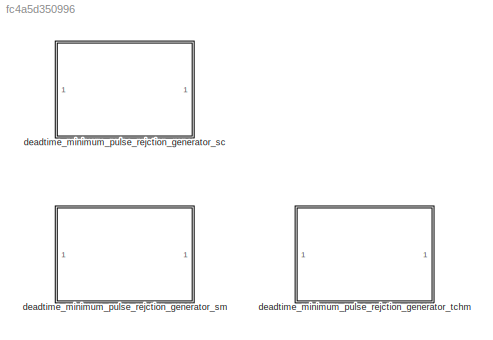
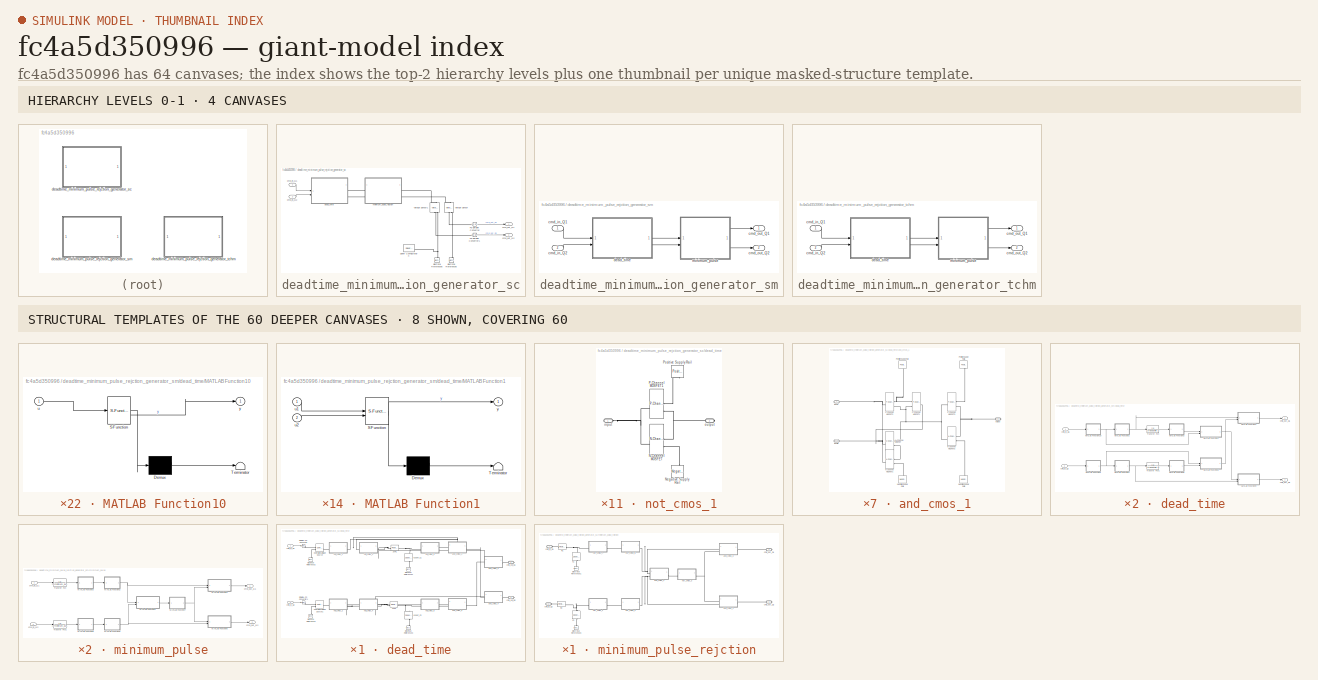
[diagram: thumbnail index - top-2 hierarchy levels (4 canvases) + 8 structural-template representatives of the remaining 60 canvases]
MODEL slx_fc4a5d350996
KIND library
CONFIG AbsTol = auto
CONFIG EnableMultiTasking = off
CONFIG FixedStep = auto
CONFIG MaxStep = auto
CONFIG MinStep = auto
CONFIG RelTol = 1e-3
CONFIG SampleTimeConstraint = Unconstrained
CONFIG SolverName = VariableStepAuto
CONFIG StartTime = 0.0
CONFIG StopTime = 10.0
BLOCK [SubSystem] deadtime_minimum_pulse_rejction_generator_sc
BLOCK [Reference] deadtime_minimum_pulse_rejction_generator_sc/Electrical Reference5  REF=fl_lib/Electrical/Electrical Elements/Electrical Reference
  SourceBlock = fl_lib/Electrical/Electrical Elements/Electrical Reference
  SourceType = Electrical Reference
BLOCK [Reference] deadtime_minimum_pulse_rejction_generator_sc/Electrical Reference6  REF=fl_lib/Electrical/Electrical Elements/Electrical Reference
  SourceBlock = fl_lib/Electrical/Electrical Elements/Electrical Reference
  SourceType = Electrical Reference
BLOCK [Reference] deadtime_minimum_pulse_rejction_generator_sc/PS-Simulink Converter  REF=nesl_utility/PS-Simulink
Converter
  SourceBlock = nesl_utility/PS-Simulink\nConverter
  SourceType = PS-Simulink\nConverter
BLOCK [Reference] deadtime_minimum_pulse_rejction_generator_sc/PS-Simulink Converter1  REF=nesl_utility/PS-Simulink
Converter
  SourceBlock = nesl_utility/PS-Simulink\nConverter
  SourceType = PS-Simulink\nConverter
BLOCK [Reference] deadtime_minimum_pulse_rejction_generator_sc/Solver Configuration  REF=nesl_utility/Solver
Configuration
  SourceBlock = nesl_utility/Solver\nConfiguration
  SourceType = Solver\nConfiguration
BLOCK [Reference] deadtime_minimum_pulse_rejction_generator_sc/Voltage Sensor  REF=fl_lib/Electrical/Electrical Sensors/Voltage Sensor
  NameLocation = right
  SourceBlock = fl_lib/Electrical/Electrical Sensors/Voltage Sensor
  SourceType = Voltage Sensor
BLOCK [Reference] deadtime_minimum_pulse_rejction_generator_sc/Voltage Sensor1  REF=fl_lib/Electrical/Electrical Sensors/Voltage Sensor
  NameLocation = right
  SourceBlock = fl_lib/Electrical/Electrical Sensors/Voltage Sensor
  SourceType = Voltage Sensor
BLOCK [Inport] deadtime_minimum_pulse_rejction_generator_sc/cmd_in_Q1
BLOCK [Inport] deadtime_minimum_pulse_rejction_generator_sc/cmd_in_Q2
  Port = 2
BLOCK [Outport] deadtime_minimum_pulse_rejction_generator_sc/cmd_out_Q1
BLOCK [Outport] deadtime_minimum_pulse_rejction_generator_sc/cmd_out_Q2
  Port = 2
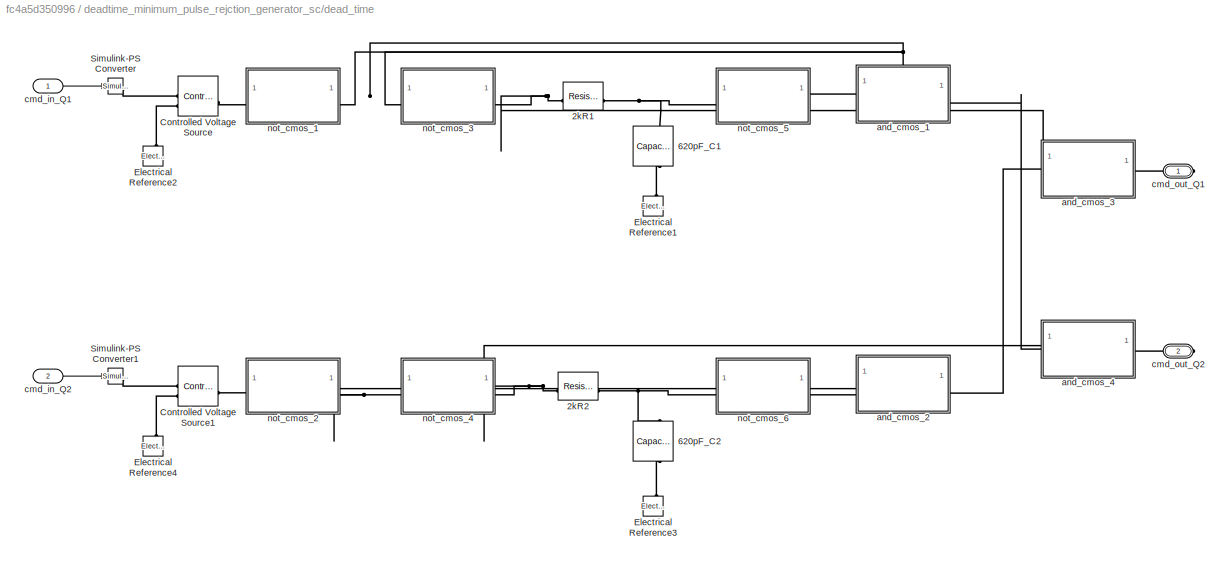
BLOCK [SubSystem] deadtime_minimum_pulse_rejction_generator_sc/dead_time
BLOCK [Reference] deadtime_minimum_pulse_rejction_generator_sc/dead_time/2kR1  REF=fl_lib/Electrical/Electrical Elements/Resistor
  SourceBlock = fl_lib/Electrical/Electrical Elements/Resistor
  SourceType = Resistor
BLOCK [Reference] deadtime_minimum_pulse_rejction_generator_sc/dead_time/2kR2  REF=fl_lib/Electrical/Electrical Elements/Resistor
  SourceBlock = fl_lib/Electrical/Electrical Elements/Resistor
  SourceType = Resistor
BLOCK [Reference] deadtime_minimum_pulse_rejction_generator_sc/dead_time/620pF_C1  REF=fl_lib/Electrical/Electrical Elements/Capacitor
  NameLocation = left
  SourceBlock = fl_lib/Electrical/Electrical Elements/Capacitor
  SourceType = Capacitor
BLOCK [Reference] deadtime_minimum_pulse_rejction_generator_sc/dead_time/620pF_C2  REF=fl_lib/Electrical/Electrical Elements/Capacitor
  NameLocation = left
  SourceBlock = fl_lib/Electrical/Electrical Elements/Capacitor
  SourceType = Capacitor
BLOCK [Reference] deadtime_minimum_pulse_rejction_generator_sc/dead_time/Controlled Voltage Source  REF=fl_lib/Electrical/Electrical Sources/Controlled Voltage
Source
  SourceBlock = fl_lib/Electrical/Electrical Sources/Controlled Voltage\nSource
  SourceType = Controlled Voltage\nSource
BLOCK [Reference] deadtime_minimum_pulse_rejction_generator_sc/dead_time/Controlled Voltage Source1  REF=fl_lib/Electrical/Electrical Sources/Controlled Voltage
Source
  SourceBlock = fl_lib/Electrical/Electrical Sources/Controlled Voltage\nSource
  SourceType = Controlled Voltage\nSource
BLOCK [Reference] deadtime_minimum_pulse_rejction_generator_sc/dead_time/Electrical Reference1  REF=fl_lib/Electrical/Electrical Elements/Electrical Reference
  NameLocation = right
  SourceBlock = fl_lib/Electrical/Electrical Elements/Electrical Reference
  SourceType = Electrical Reference
BLOCK [Reference] deadtime_minimum_pulse_rejction_generator_sc/dead_time/Electrical Reference2  REF=fl_lib/Electrical/Electrical Elements/Electrical Reference
  NameLocation = right
  SourceBlock = fl_lib/Electrical/Electrical Elements/Electrical Reference
  SourceType = Electrical Reference
BLOCK [Reference] deadtime_minimum_pulse_rejction_generator_sc/dead_time/Electrical Reference3  REF=fl_lib/Electrical/Electrical Elements/Electrical Reference
  NameLocation = right
  SourceBlock = fl_lib/Electrical/Electrical Elements/Electrical Reference
  SourceType = Electrical Reference
BLOCK [Reference] deadtime_minimum_pulse_rejction_generator_sc/dead_time/Electrical Reference4  REF=fl_lib/Electrical/Electrical Elements/Electrical Reference
  NameLocation = right
  SourceBlock = fl_lib/Electrical/Electrical Elements/Electrical Reference
  SourceType = Electrical Reference
BLOCK [Reference] deadtime_minimum_pulse_rejction_generator_sc/dead_time/Simulink-PS Converter  REF=nesl_utility/Simulink-PS
Converter
  SourceBlock = nesl_utility/Simulink-PS\nConverter
  SourceType = Simulink-PS\nConverter
BLOCK [Reference] deadtime_minimum_pulse_rejction_generator_sc/dead_time/Simulink-PS Converter1  REF=nesl_utility/Simulink-PS
Converter
  SourceBlock = nesl_utility/Simulink-PS\nConverter
  SourceType = Simulink-PS\nConverter
BLOCK [SubSystem] deadtime_minimum_pulse_rejction_generator_sc/dead_time/and_cmos_1
  PortSchema = {"entries":[{"content":{"sides":[{"content":{"connectorIds":["LConn1"]},"type":"ConnectorPlacement.EquallySpacedRectSide","uuid":"4468949f-f30a-49ce-949f-963bd607b697"},{"content":{"connectorIds":["RConn1"],"side":"RIGHT"},"type":"ConnectorPlacement.EquallySpacedRectSide","uuid":"ceda4040-901d-4fda-af9a-fc2c310617d8"},{"content":{"connectorIds":["LConn2"],"side":"TOP"},"type":"ConnectorPlacement.E...<+253ch>  <repeated x4 — deduplicated; at blocks: and_cmos_1, and_cmos_2, and_cmos_3, and_cmos_4>
BLOCK [Reference] deadtime_minimum_pulse_rejction_generator_sc/dead_time/and_cmos_1/N-Channel MOSFET  REF=ee_lib/Semiconductors &
Converters/N-Channel MOSFET
  SourceBlock = ee_lib/Semiconductors &\nConverters/N-Channel MOSFET
  SourceType = N-Channel MOSFET
BLOCK [Reference] deadtime_minimum_pulse_rejction_generator_sc/dead_time/and_cmos_1/N-Channel MOSFET1  REF=ee_lib/Semiconductors &
Converters/N-Channel MOSFET
  SourceBlock = ee_lib/Semiconductors &\nConverters/N-Channel MOSFET
  SourceType = N-Channel MOSFET
BLOCK [Reference] deadtime_minimum_pulse_rejction_generator_sc/dead_time/and_cmos_1/N-Channel MOSFET2  REF=ee_lib/Semiconductors &
Converters/N-Channel MOSFET
  SourceBlock = ee_lib/Semiconductors &\nConverters/N-Channel MOSFET
  SourceType = N-Channel MOSFET
BLOCK [Reference] deadtime_minimum_pulse_rejction_generator_sc/dead_time/and_cmos_1/Negative Supply Rail1  REF=ee_lib/Sources/Negative Supply Rail
  NameLocation = right
  SourceBlock = ee_lib/Sources/Negative Supply Rail
  SourceType = Negative Supply Rail
BLOCK [Reference] deadtime_minimum_pulse_rejction_generator_sc/dead_time/and_cmos_1/Negative Supply Rail2  REF=ee_lib/Sources/Negative Supply Rail
  NameLocation = right
  SourceBlock = ee_lib/Sources/Negative Supply Rail
  SourceType = Negative Supply Rail
BLOCK [Reference] deadtime_minimum_pulse_rejction_generator_sc/dead_time/and_cmos_1/P-Channel MOSFET1  REF=ee_lib/Semiconductors &
Converters/P-Channel MOSFET
  SourceBlock = ee_lib/Semiconductors &\nConverters/P-Channel MOSFET
  SourceType = P-Channel MOSFET
BLOCK [Reference] deadtime_minimum_pulse_rejction_generator_sc/dead_time/and_cmos_1/P-Channel MOSFET2  REF=ee_lib/Semiconductors &
Converters/P-Channel MOSFET
  SourceBlock = ee_lib/Semiconductors &\nConverters/P-Channel MOSFET
  SourceType = P-Channel MOSFET
BLOCK [Reference] deadtime_minimum_pulse_rejction_generator_sc/dead_time/and_cmos_1/P-Channel MOSFET3  REF=ee_lib/Semiconductors &
Converters/P-Channel MOSFET
  SourceBlock = ee_lib/Semiconductors &\nConverters/P-Channel MOSFET
  SourceType = P-Channel MOSFET
BLOCK [Reference] deadtime_minimum_pulse_rejction_generator_sc/dead_time/and_cmos_1/Positive Supply Rail  REF=ee_lib/Sources/Positive Supply Rail
  NameLocation = right
  SourceBlock = ee_lib/Sources/Positive Supply Rail
  SourceType = Positive Supply Rail
BLOCK [Reference] deadtime_minimum_pulse_rejction_generator_sc/dead_time/and_cmos_1/Positive Supply Rail1  REF=ee_lib/Sources/Positive Supply Rail
  NameLocation = right
  SourceBlock = ee_lib/Sources/Positive Supply Rail
  SourceType = Positive Supply Rail
BLOCK [PMIOPort] deadtime_minimum_pulse_rejction_generator_sc/dead_time/and_cmos_1/inputA
  Port = 2
  Side = Left
BLOCK [PMIOPort] deadtime_minimum_pulse_rejction_generator_sc/dead_time/and_cmos_1/inputB
  Side = Left
BLOCK [PMIOPort] deadtime_minimum_pulse_rejction_generator_sc/dead_time/and_cmos_1/output
  Port = 3
  Side = Right
BLOCK [SubSystem] deadtime_minimum_pulse_rejction_generator_sc/dead_time/and_cmos_2
BLOCK [Reference] deadtime_minimum_pulse_rejction_generator_sc/dead_time/and_cmos_2/N-Channel MOSFET  REF=ee_lib/Semiconductors &
Converters/N-Channel MOSFET
  SourceBlock = ee_lib/Semiconductors &\nConverters/N-Channel MOSFET
  SourceType = N-Channel MOSFET
BLOCK [Reference] deadtime_minimum_pulse_rejction_generator_sc/dead_time/and_cmos_2/N-Channel MOSFET1  REF=ee_lib/Semiconductors &
Converters/N-Channel MOSFET
  SourceBlock = ee_lib/Semiconductors &\nConverters/N-Channel MOSFET
  SourceType = N-Channel MOSFET
BLOCK [Reference] deadtime_minimum_pulse_rejction_generator_sc/dead_time/and_cmos_2/N-Channel MOSFET2  REF=ee_lib/Semiconductors &
Converters/N-Channel MOSFET
  SourceBlock = ee_lib/Semiconductors &\nConverters/N-Channel MOSFET
  SourceType = N-Channel MOSFET
BLOCK [Reference] deadtime_minimum_pulse_rejction_generator_sc/dead_time/and_cmos_2/Negative Supply Rail1  REF=ee_lib/Sources/Negative Supply Rail
  NameLocation = right
  SourceBlock = ee_lib/Sources/Negative Supply Rail
  SourceType = Negative Supply Rail
BLOCK [Reference] deadtime_minimum_pulse_rejction_generator_sc/dead_time/and_cmos_2/Negative Supply Rail2  REF=ee_lib/Sources/Negative Supply Rail
  NameLocation = right
  SourceBlock = ee_lib/Sources/Negative Supply Rail
  SourceType = Negative Supply Rail
BLOCK [Reference] deadtime_minimum_pulse_rejction_generator_sc/dead_time/and_cmos_2/P-Channel MOSFET1  REF=ee_lib/Semiconductors &
Converters/P-Channel MOSFET
  SourceBlock = ee_lib/Semiconductors &\nConverters/P-Channel MOSFET
  SourceType = P-Channel MOSFET
BLOCK [Reference] deadtime_minimum_pulse_rejction_generator_sc/dead_time/and_cmos_2/P-Channel MOSFET2  REF=ee_lib/Semiconductors &
Converters/P-Channel MOSFET
  SourceBlock = ee_lib/Semiconductors &\nConverters/P-Channel MOSFET
  SourceType = P-Channel MOSFET
BLOCK [Reference] deadtime_minimum_pulse_rejction_generator_sc/dead_time/and_cmos_2/P-Channel MOSFET3  REF=ee_lib/Semiconductors &
Converters/P-Channel MOSFET
  SourceBlock = ee_lib/Semiconductors &\nConverters/P-Channel MOSFET
  SourceType = P-Channel MOSFET
BLOCK [Reference] deadtime_minimum_pulse_rejction_generator_sc/dead_time/and_cmos_2/Positive Supply Rail  REF=ee_lib/Sources/Positive Supply Rail
  NameLocation = right
  SourceBlock = ee_lib/Sources/Positive Supply Rail
  SourceType = Positive Supply Rail
BLOCK [Reference] deadtime_minimum_pulse_rejction_generator_sc/dead_time/and_cmos_2/Positive Supply Rail1  REF=ee_lib/Sources/Positive Supply Rail
  NameLocation = right
  SourceBlock = ee_lib/Sources/Positive Supply Rail
  SourceType = Positive Supply Rail
BLOCK [PMIOPort] deadtime_minimum_pulse_rejction_generator_sc/dead_time/and_cmos_2/inputA
  Port = 2
  Side = Left
BLOCK [PMIOPort] deadtime_minimum_pulse_rejction_generator_sc/dead_time/and_cmos_2/inputB
  Side = Left
BLOCK [PMIOPort] deadtime_minimum_pulse_rejction_generator_sc/dead_time/and_cmos_2/output
  Port = 3
  Side = Right
BLOCK [SubSystem] deadtime_minimum_pulse_rejction_generator_sc/dead_time/and_cmos_3
BLOCK [Reference] deadtime_minimum_pulse_rejction_generator_sc/dead_time/and_cmos_3/N-Channel MOSFET  REF=ee_lib/Semiconductors &
Converters/N-Channel MOSFET
  SourceBlock = ee_lib/Semiconductors &\nConverters/N-Channel MOSFET
  SourceType = N-Channel MOSFET
BLOCK [Reference] deadtime_minimum_pulse_rejction_generator_sc/dead_time/and_cmos_3/N-Channel MOSFET1  REF=ee_lib/Semiconductors &
Converters/N-Channel MOSFET
  SourceBlock = ee_lib/Semiconductors &\nConverters/N-Channel MOSFET
  SourceType = N-Channel MOSFET
BLOCK [Reference] deadtime_minimum_pulse_rejction_generator_sc/dead_time/and_cmos_3/N-Channel MOSFET2  REF=ee_lib/Semiconductors &
Converters/N-Channel MOSFET
  SourceBlock = ee_lib/Semiconductors &\nConverters/N-Channel MOSFET
  SourceType = N-Channel MOSFET
BLOCK [Reference] deadtime_minimum_pulse_rejction_generator_sc/dead_time/and_cmos_3/Negative Supply Rail1  REF=ee_lib/Sources/Negative Supply Rail
  NameLocation = right
  SourceBlock = ee_lib/Sources/Negative Supply Rail
  SourceType = Negative Supply Rail
BLOCK [Reference] deadtime_minimum_pulse_rejction_generator_sc/dead_time/and_cmos_3/Negative Supply Rail2  REF=ee_lib/Sources/Negative Supply Rail
  NameLocation = right
  SourceBlock = ee_lib/Sources/Negative Supply Rail
  SourceType = Negative Supply Rail
BLOCK [Reference] deadtime_minimum_pulse_rejction_generator_sc/dead_time/and_cmos_3/P-Channel MOSFET1  REF=ee_lib/Semiconductors &
Converters/P-Channel MOSFET
  SourceBlock = ee_lib/Semiconductors &\nConverters/P-Channel MOSFET
  SourceType = P-Channel MOSFET
BLOCK [Reference] deadtime_minimum_pulse_rejction_generator_sc/dead_time/and_cmos_3/P-Channel MOSFET2  REF=ee_lib/Semiconductors &
Converters/P-Channel MOSFET
  SourceBlock = ee_lib/Semiconductors &\nConverters/P-Channel MOSFET
  SourceType = P-Channel MOSFET
BLOCK [Reference] deadtime_minimum_pulse_rejction_generator_sc/dead_time/and_cmos_3/P-Channel MOSFET3  REF=ee_lib/Semiconductors &
Converters/P-Channel MOSFET
  SourceBlock = ee_lib/Semiconductors &\nConverters/P-Channel MOSFET
  SourceType = P-Channel MOSFET
BLOCK [Reference] deadtime_minimum_pulse_rejction_generator_sc/dead_time/and_cmos_3/Positive Supply Rail  REF=ee_lib/Sources/Positive Supply Rail
  NameLocation = right
  SourceBlock = ee_lib/Sources/Positive Supply Rail
  SourceType = Positive Supply Rail
BLOCK [Reference] deadtime_minimum_pulse_rejction_generator_sc/dead_time/and_cmos_3/Positive Supply Rail1  REF=ee_lib/Sources/Positive Supply Rail
  NameLocation = right
  SourceBlock = ee_lib/Sources/Positive Supply Rail
  SourceType = Positive Supply Rail
BLOCK [PMIOPort] deadtime_minimum_pulse_rejction_generator_sc/dead_time/and_cmos_3/inputA
  Port = 2
  Side = Left
BLOCK [PMIOPort] deadtime_minimum_pulse_rejction_generator_sc/dead_time/and_cmos_3/inputB
  Side = Left
BLOCK [PMIOPort] deadtime_minimum_pulse_rejction_generator_sc/dead_time/and_cmos_3/output
  Port = 3
  Side = Right
BLOCK [SubSystem] deadtime_minimum_pulse_rejction_generator_sc/dead_time/and_cmos_4
BLOCK [Reference] deadtime_minimum_pulse_rejction_generator_sc/dead_time/and_cmos_4/N-Channel MOSFET  REF=ee_lib/Semiconductors &
Converters/N-Channel MOSFET
  SourceBlock = ee_lib/Semiconductors &\nConverters/N-Channel MOSFET
  SourceType = N-Channel MOSFET
BLOCK [Reference] deadtime_minimum_pulse_rejction_generator_sc/dead_time/and_cmos_4/N-Channel MOSFET1  REF=ee_lib/Semiconductors &
Converters/N-Channel MOSFET
  SourceBlock = ee_lib/Semiconductors &\nConverters/N-Channel MOSFET
  SourceType = N-Channel MOSFET
BLOCK [Reference] deadtime_minimum_pulse_rejction_generator_sc/dead_time/and_cmos_4/N-Channel MOSFET2  REF=ee_lib/Semiconductors &
Converters/N-Channel MOSFET
  SourceBlock = ee_lib/Semiconductors &\nConverters/N-Channel MOSFET
  SourceType = N-Channel MOSFET
BLOCK [Reference] deadtime_minimum_pulse_rejction_generator_sc/dead_time/and_cmos_4/Negative Supply Rail1  REF=ee_lib/Sources/Negative Supply Rail
  NameLocation = right
  SourceBlock = ee_lib/Sources/Negative Supply Rail
  SourceType = Negative Supply Rail
BLOCK [Reference] deadtime_minimum_pulse_rejction_generator_sc/dead_time/and_cmos_4/Negative Supply Rail2  REF=ee_lib/Sources/Negative Supply Rail
  NameLocation = right
  SourceBlock = ee_lib/Sources/Negative Supply Rail
  SourceType = Negative Supply Rail
BLOCK [Reference] deadtime_minimum_pulse_rejction_generator_sc/dead_time/and_cmos_4/P-Channel MOSFET1  REF=ee_lib/Semiconductors &
Converters/P-Channel MOSFET
  SourceBlock = ee_lib/Semiconductors &\nConverters/P-Channel MOSFET
  SourceType = P-Channel MOSFET
BLOCK [Reference] deadtime_minimum_pulse_rejction_generator_sc/dead_time/and_cmos_4/P-Channel MOSFET2  REF=ee_lib/Semiconductors &
Converters/P-Channel MOSFET
  SourceBlock = ee_lib/Semiconductors &\nConverters/P-Channel MOSFET
  SourceType = P-Channel MOSFET
BLOCK [Reference] deadtime_minimum_pulse_rejction_generator_sc/dead_time/and_cmos_4/P-Channel MOSFET3  REF=ee_lib/Semiconductors &
Converters/P-Channel MOSFET
  SourceBlock = ee_lib/Semiconductors &\nConverters/P-Channel MOSFET
  SourceType = P-Channel MOSFET
BLOCK [Reference] deadtime_minimum_pulse_rejction_generator_sc/dead_time/and_cmos_4/Positive Supply Rail  REF=ee_lib/Sources/Positive Supply Rail
  NameLocation = right
  SourceBlock = ee_lib/Sources/Positive Supply Rail
  SourceType = Positive Supply Rail
BLOCK [Reference] deadtime_minimum_pulse_rejction_generator_sc/dead_time/and_cmos_4/Positive Supply Rail1  REF=ee_lib/Sources/Positive Supply Rail
  NameLocation = right
  SourceBlock = ee_lib/Sources/Positive Supply Rail
  SourceType = Positive Supply Rail
BLOCK [PMIOPort] deadtime_minimum_pulse_rejction_generator_sc/dead_time/and_cmos_4/inputA
  Port = 2
  Side = Left
BLOCK [PMIOPort] deadtime_minimum_pulse_rejction_generator_sc/dead_time/and_cmos_4/inputB
  Side = Left
BLOCK [PMIOPort] deadtime_minimum_pulse_rejction_generator_sc/dead_time/and_cmos_4/output
  Port = 3
  Side = Right
BLOCK [Inport] deadtime_minimum_pulse_rejction_generator_sc/dead_time/cmd_in_Q1
BLOCK [Inport] deadtime_minimum_pulse_rejction_generator_sc/dead_time/cmd_in_Q2
  Port = 2
BLOCK [PMIOPort] deadtime_minimum_pulse_rejction_generator_sc/dead_time/cmd_out_Q1
  Side = Right
BLOCK [PMIOPort] deadtime_minimum_pulse_rejction_generator_sc/dead_time/cmd_out_Q2
  Port = 2
  Side = Right
BLOCK [SubSystem] deadtime_minimum_pulse_rejction_generator_sc/dead_time/not_cmos_1
BLOCK [Reference] deadtime_minimum_pulse_rejction_generator_sc/dead_time/not_cmos_1/N-Channel MOSFET  REF=ee_lib/Semiconductors &
Converters/N-Channel MOSFET
  SourceBlock = ee_lib/Semiconductors &\nConverters/N-Channel MOSFET
  SourceType = N-Channel MOSFET
BLOCK [Reference] deadtime_minimum_pulse_rejction_generator_sc/dead_time/not_cmos_1/Negative Supply Rail  REF=ee_lib/Sources/Negative Supply Rail
  NameLocation = right
  SourceBlock = ee_lib/Sources/Negative Supply Rail
  SourceType = Negative Supply Rail
BLOCK [Reference] deadtime_minimum_pulse_rejction_generator_sc/dead_time/not_cmos_1/P-Channel MOSFET1  REF=ee_lib/Semiconductors &
Converters/P-Channel MOSFET
  SourceBlock = ee_lib/Semiconductors &\nConverters/P-Channel MOSFET
  SourceType = P-Channel MOSFET
BLOCK [Reference] deadtime_minimum_pulse_rejction_generator_sc/dead_time/not_cmos_1/Positive Supply Rail  REF=ee_lib/Sources/Positive Supply Rail
  NameLocation = right
  SourceBlock = ee_lib/Sources/Positive Supply Rail
  SourceType = Positive Supply Rail
BLOCK [PMIOPort] deadtime_minimum_pulse_rejction_generator_sc/dead_time/not_cmos_1/input
  Side = Left
BLOCK [PMIOPort] deadtime_minimum_pulse_rejction_generator_sc/dead_time/not_cmos_1/output
  Port = 2
  Side = Right
BLOCK [SubSystem] deadtime_minimum_pulse_rejction_generator_sc/dead_time/not_cmos_2
BLOCK [Reference] deadtime_minimum_pulse_rejction_generator_sc/dead_time/not_cmos_2/N-Channel MOSFET  REF=ee_lib/Semiconductors &
Converters/N-Channel MOSFET
  SourceBlock = ee_lib/Semiconductors &\nConverters/N-Channel MOSFET
  SourceType = N-Channel MOSFET
BLOCK [Reference] deadtime_minimum_pulse_rejction_generator_sc/dead_time/not_cmos_2/Negative Supply Rail  REF=ee_lib/Sources/Negative Supply Rail
  NameLocation = right
  SourceBlock = ee_lib/Sources/Negative Supply Rail
  SourceType = Negative Supply Rail
BLOCK [Reference] deadtime_minimum_pulse_rejction_generator_sc/dead_time/not_cmos_2/P-Channel MOSFET1  REF=ee_lib/Semiconductors &
Converters/P-Channel MOSFET
  SourceBlock = ee_lib/Semiconductors &\nConverters/P-Channel MOSFET
  SourceType = P-Channel MOSFET
BLOCK [Reference] deadtime_minimum_pulse_rejction_generator_sc/dead_time/not_cmos_2/Positive Supply Rail  REF=ee_lib/Sources/Positive Supply Rail
  NameLocation = right
  SourceBlock = ee_lib/Sources/Positive Supply Rail
  SourceType = Positive Supply Rail
BLOCK [PMIOPort] deadtime_minimum_pulse_rejction_generator_sc/dead_time/not_cmos_2/input
  Side = Left
BLOCK [PMIOPort] deadtime_minimum_pulse_rejction_generator_sc/dead_time/not_cmos_2/output
  Port = 2
  Side = Right
BLOCK [SubSystem] deadtime_minimum_pulse_rejction_generator_sc/dead_time/not_cmos_3
BLOCK [Reference] deadtime_minimum_pulse_rejction_generator_sc/dead_time/not_cmos_3/N-Channel MOSFET  REF=ee_lib/Semiconductors &
Converters/N-Channel MOSFET
  SourceBlock = ee_lib/Semiconductors &\nConverters/N-Channel MOSFET
  SourceType = N-Channel MOSFET
BLOCK [Reference] deadtime_minimum_pulse_rejction_generator_sc/dead_time/not_cmos_3/Negative Supply Rail  REF=ee_lib/Sources/Negative Supply Rail
  NameLocation = right
  SourceBlock = ee_lib/Sources/Negative Supply Rail
  SourceType = Negative Supply Rail
BLOCK [Reference] deadtime_minimum_pulse_rejction_generator_sc/dead_time/not_cmos_3/P-Channel MOSFET1  REF=ee_lib/Semiconductors &
Converters/P-Channel MOSFET
  SourceBlock = ee_lib/Semiconductors &\nConverters/P-Channel MOSFET
  SourceType = P-Channel MOSFET
BLOCK [Reference] deadtime_minimum_pulse_rejction_generator_sc/dead_time/not_cmos_3/Positive Supply Rail  REF=ee_lib/Sources/Positive Supply Rail
  NameLocation = right
  SourceBlock = ee_lib/Sources/Positive Supply Rail
  SourceType = Positive Supply Rail
BLOCK [PMIOPort] deadtime_minimum_pulse_rejction_generator_sc/dead_time/not_cmos_3/input
  Side = Left
BLOCK [PMIOPort] deadtime_minimum_pulse_rejction_generator_sc/dead_time/not_cmos_3/output
  Port = 2
  Side = Right
BLOCK [SubSystem] deadtime_minimum_pulse_rejction_generator_sc/dead_time/not_cmos_4
BLOCK [Reference] deadtime_minimum_pulse_rejction_generator_sc/dead_time/not_cmos_4/N-Channel MOSFET  REF=ee_lib/Semiconductors &
Converters/N-Channel MOSFET
  SourceBlock = ee_lib/Semiconductors &\nConverters/N-Channel MOSFET
  SourceType = N-Channel MOSFET
BLOCK [Reference] deadtime_minimum_pulse_rejction_generator_sc/dead_time/not_cmos_4/Negative Supply Rail  REF=ee_lib/Sources/Negative Supply Rail
  NameLocation = right
  SourceBlock = ee_lib/Sources/Negative Supply Rail
  SourceType = Negative Supply Rail
BLOCK [Reference] deadtime_minimum_pulse_rejction_generator_sc/dead_time/not_cmos_4/P-Channel MOSFET1  REF=ee_lib/Semiconductors &
Converters/P-Channel MOSFET
  SourceBlock = ee_lib/Semiconductors &\nConverters/P-Channel MOSFET
  SourceType = P-Channel MOSFET
BLOCK [Reference] deadtime_minimum_pulse_rejction_generator_sc/dead_time/not_cmos_4/Positive Supply Rail  REF=ee_lib/Sources/Positive Supply Rail
  NameLocation = right
  SourceBlock = ee_lib/Sources/Positive Supply Rail
  SourceType = Positive Supply Rail
BLOCK [PMIOPort] deadtime_minimum_pulse_rejction_generator_sc/dead_time/not_cmos_4/input
  Side = Left
BLOCK [PMIOPort] deadtime_minimum_pulse_rejction_generator_sc/dead_time/not_cmos_4/output
  Port = 2
  Side = Right
BLOCK [SubSystem] deadtime_minimum_pulse_rejction_generator_sc/dead_time/not_cmos_5
BLOCK [Reference] deadtime_minimum_pulse_rejction_generator_sc/dead_time/not_cmos_5/N-Channel MOSFET  REF=ee_lib/Semiconductors &
Converters/N-Channel MOSFET
  SourceBlock = ee_lib/Semiconductors &\nConverters/N-Channel MOSFET
  SourceType = N-Channel MOSFET
BLOCK [Reference] deadtime_minimum_pulse_rejction_generator_sc/dead_time/not_cmos_5/Negative Supply Rail  REF=ee_lib/Sources/Negative Supply Rail
  NameLocation = right
  SourceBlock = ee_lib/Sources/Negative Supply Rail
  SourceType = Negative Supply Rail
BLOCK [Reference] deadtime_minimum_pulse_rejction_generator_sc/dead_time/not_cmos_5/P-Channel MOSFET1  REF=ee_lib/Semiconductors &
Converters/P-Channel MOSFET
  SourceBlock = ee_lib/Semiconductors &\nConverters/P-Channel MOSFET
  SourceType = P-Channel MOSFET
BLOCK [Reference] deadtime_minimum_pulse_rejction_generator_sc/dead_time/not_cmos_5/Positive Supply Rail  REF=ee_lib/Sources/Positive Supply Rail
  NameLocation = right
  SourceBlock = ee_lib/Sources/Positive Supply Rail
  SourceType = Positive Supply Rail
BLOCK [PMIOPort] deadtime_minimum_pulse_rejction_generator_sc/dead_time/not_cmos_5/input
  Side = Left
BLOCK [PMIOPort] deadtime_minimum_pulse_rejction_generator_sc/dead_time/not_cmos_5/output
  Port = 2
  Side = Right
BLOCK [SubSystem] deadtime_minimum_pulse_rejction_generator_sc/dead_time/not_cmos_6
BLOCK [Reference] deadtime_minimum_pulse_rejction_generator_sc/dead_time/not_cmos_6/N-Channel MOSFET  REF=ee_lib/Semiconductors &
Converters/N-Channel MOSFET
  SourceBlock = ee_lib/Semiconductors &\nConverters/N-Channel MOSFET
  SourceType = N-Channel MOSFET
BLOCK [Reference] deadtime_minimum_pulse_rejction_generator_sc/dead_time/not_cmos_6/Negative Supply Rail  REF=ee_lib/Sources/Negative Supply Rail
  NameLocation = right
  SourceBlock = ee_lib/Sources/Negative Supply Rail
  SourceType = Negative Supply Rail
BLOCK [Reference] deadtime_minimum_pulse_rejction_generator_sc/dead_time/not_cmos_6/P-Channel MOSFET1  REF=ee_lib/Semiconductors &
Converters/P-Channel MOSFET
  SourceBlock = ee_lib/Semiconductors &\nConverters/P-Channel MOSFET
  SourceType = P-Channel MOSFET
BLOCK [Reference] deadtime_minimum_pulse_rejction_generator_sc/dead_time/not_cmos_6/Positive Supply Rail  REF=ee_lib/Sources/Positive Supply Rail
  NameLocation = right
  SourceBlock = ee_lib/Sources/Positive Supply Rail
  SourceType = Positive Supply Rail
BLOCK [PMIOPort] deadtime_minimum_pulse_rejction_generator_sc/dead_time/not_cmos_6/input
  Side = Left
BLOCK [PMIOPort] deadtime_minimum_pulse_rejction_generator_sc/dead_time/not_cmos_6/output
  Port = 2
  Side = Right
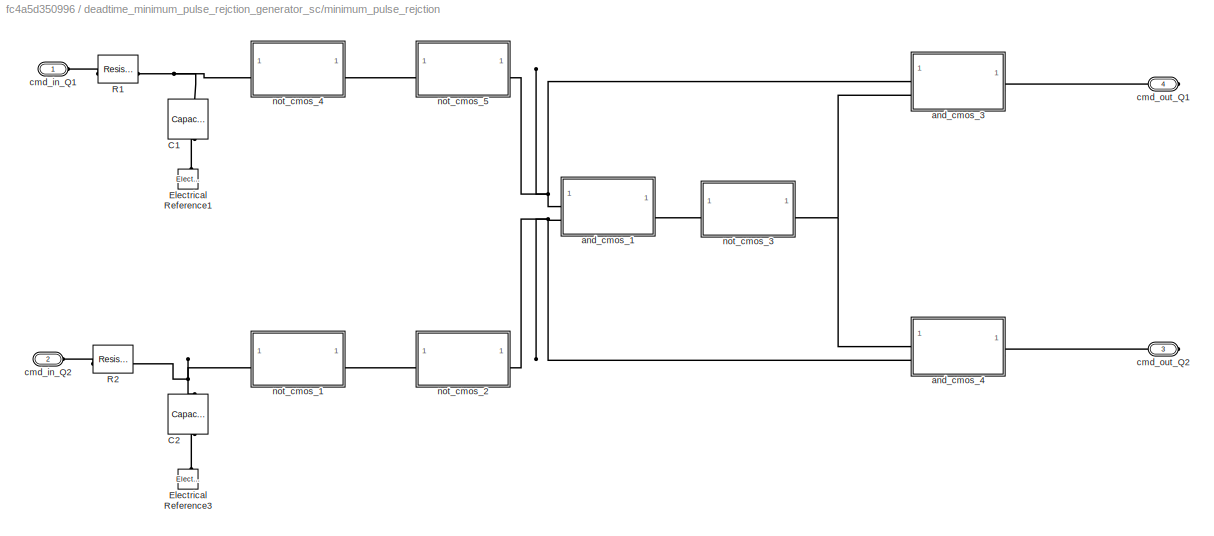
BLOCK [SubSystem] deadtime_minimum_pulse_rejction_generator_sc/minimum_pulse_rejction
BLOCK [Reference] deadtime_minimum_pulse_rejction_generator_sc/minimum_pulse_rejction/C1  REF=fl_lib/Electrical/Electrical Elements/Capacitor
  NameLocation = left
  SourceBlock = fl_lib/Electrical/Electrical Elements/Capacitor
  SourceType = Capacitor
BLOCK [Reference] deadtime_minimum_pulse_rejction_generator_sc/minimum_pulse_rejction/C2  REF=fl_lib/Electrical/Electrical Elements/Capacitor
  NameLocation = left
  SourceBlock = fl_lib/Electrical/Electrical Elements/Capacitor
  SourceType = Capacitor
BLOCK [Reference] deadtime_minimum_pulse_rejction_generator_sc/minimum_pulse_rejction/Electrical Reference1  REF=fl_lib/Electrical/Electrical Elements/Electrical Reference
  NameLocation = right
  SourceBlock = fl_lib/Electrical/Electrical Elements/Electrical Reference
  SourceType = Electrical Reference
BLOCK [Reference] deadtime_minimum_pulse_rejction_generator_sc/minimum_pulse_rejction/Electrical Reference3  REF=fl_lib/Electrical/Electrical Elements/Electrical Reference
  NameLocation = right
  SourceBlock = fl_lib/Electrical/Electrical Elements/Electrical Reference
  SourceType = Electrical Reference
BLOCK [Reference] deadtime_minimum_pulse_rejction_generator_sc/minimum_pulse_rejction/R1  REF=fl_lib/Electrical/Electrical Elements/Resistor
  SourceBlock = fl_lib/Electrical/Electrical Elements/Resistor
  SourceType = Resistor
BLOCK [Reference] deadtime_minimum_pulse_rejction_generator_sc/minimum_pulse_rejction/R2  REF=fl_lib/Electrical/Electrical Elements/Resistor
  SourceBlock = fl_lib/Electrical/Electrical Elements/Resistor
  SourceType = Resistor
BLOCK [SubSystem] deadtime_minimum_pulse_rejction_generator_sc/minimum_pulse_rejction/and_cmos_1
BLOCK [Reference] deadtime_minimum_pulse_rejction_generator_sc/minimum_pulse_rejction/and_cmos_1/N-Channel MOSFET  REF=ee_lib/Semiconductors &
Converters/N-Channel MOSFET
  SourceBlock = ee_lib/Semiconductors &\nConverters/N-Channel MOSFET
  SourceType = N-Channel MOSFET
BLOCK [Reference] deadtime_minimum_pulse_rejction_generator_sc/minimum_pulse_rejction/and_cmos_1/N-Channel MOSFET1  REF=ee_lib/Semiconductors &
Converters/N-Channel MOSFET
  SourceBlock = ee_lib/Semiconductors &\nConverters/N-Channel MOSFET
  SourceType = N-Channel MOSFET
BLOCK [Reference] deadtime_minimum_pulse_rejction_generator_sc/minimum_pulse_rejction/and_cmos_1/N-Channel MOSFET2  REF=ee_lib/Semiconductors &
Converters/N-Channel MOSFET
  SourceBlock = ee_lib/Semiconductors &\nConverters/N-Channel MOSFET
  SourceType = N-Channel MOSFET
BLOCK [Reference] deadtime_minimum_pulse_rejction_generator_sc/minimum_pulse_rejction/and_cmos_1/Negative Supply Rail1  REF=ee_lib/Sources/Negative Supply Rail
  NameLocation = right
  SourceBlock = ee_lib/Sources/Negative Supply Rail
  SourceType = Negative Supply Rail
BLOCK [Reference] deadtime_minimum_pulse_rejction_generator_sc/minimum_pulse_rejction/and_cmos_1/Negative Supply Rail2  REF=ee_lib/Sources/Negative Supply Rail
  NameLocation = right
  SourceBlock = ee_lib/Sources/Negative Supply Rail
  SourceType = Negative Supply Rail
BLOCK [Reference] deadtime_minimum_pulse_rejction_generator_sc/minimum_pulse_rejction/and_cmos_1/P-Channel MOSFET1  REF=ee_lib/Semiconductors &
Converters/P-Channel MOSFET
  SourceBlock = ee_lib/Semiconductors &\nConverters/P-Channel MOSFET
  SourceType = P-Channel MOSFET
BLOCK [Reference] deadtime_minimum_pulse_rejction_generator_sc/minimum_pulse_rejction/and_cmos_1/P-Channel MOSFET2  REF=ee_lib/Semiconductors &
Converters/P-Channel MOSFET
  SourceBlock = ee_lib/Semiconductors &\nConverters/P-Channel MOSFET
  SourceType = P-Channel MOSFET
BLOCK [Reference] deadtime_minimum_pulse_rejction_generator_sc/minimum_pulse_rejction/and_cmos_1/P-Channel MOSFET3  REF=ee_lib/Semiconductors &
Converters/P-Channel MOSFET
  SourceBlock = ee_lib/Semiconductors &\nConverters/P-Channel MOSFET
  SourceType = P-Channel MOSFET
BLOCK [Reference] deadtime_minimum_pulse_rejction_generator_sc/minimum_pulse_rejction/and_cmos_1/Positive Supply Rail  REF=ee_lib/Sources/Positive Supply Rail
  NameLocation = right
  SourceBlock = ee_lib/Sources/Positive Supply Rail
  SourceType = Positive Supply Rail
BLOCK [Reference] deadtime_minimum_pulse_rejction_generator_sc/minimum_pulse_rejction/and_cmos_1/Positive Supply Rail1  REF=ee_lib/Sources/Positive Supply Rail
  NameLocation = right
  SourceBlock = ee_lib/Sources/Positive Supply Rail
  SourceType = Positive Supply Rail
BLOCK [PMIOPort] deadtime_minimum_pulse_rejction_generator_sc/minimum_pulse_rejction/and_cmos_1/inputA
  Side = Left
BLOCK [PMIOPort] deadtime_minimum_pulse_rejction_generator_sc/minimum_pulse_rejction/and_cmos_1/inputB
  Port = 2
  Side = Left
BLOCK [PMIOPort] deadtime_minimum_pulse_rejction_generator_sc/minimum_pulse_rejction/and_cmos_1/output
  Port = 3
  Side = Right
BLOCK [SubSystem] deadtime_minimum_pulse_rejction_generator_sc/minimum_pulse_rejction/and_cmos_3
BLOCK [Reference] deadtime_minimum_pulse_rejction_generator_sc/minimum_pulse_rejction/and_cmos_3/N-Channel MOSFET  REF=ee_lib/Semiconductors &
Converters/N-Channel MOSFET
  SourceBlock = ee_lib/Semiconductors &\nConverters/N-Channel MOSFET
  SourceType = N-Channel MOSFET
BLOCK [Reference] deadtime_minimum_pulse_rejction_generator_sc/minimum_pulse_rejction/and_cmos_3/N-Channel MOSFET1  REF=ee_lib/Semiconductors &
Converters/N-Channel MOSFET
  SourceBlock = ee_lib/Semiconductors &\nConverters/N-Channel MOSFET
  SourceType = N-Channel MOSFET
BLOCK [Reference] deadtime_minimum_pulse_rejction_generator_sc/minimum_pulse_rejction/and_cmos_3/N-Channel MOSFET2  REF=ee_lib/Semiconductors &
Converters/N-Channel MOSFET
  SourceBlock = ee_lib/Semiconductors &\nConverters/N-Channel MOSFET
  SourceType = N-Channel MOSFET
BLOCK [Reference] deadtime_minimum_pulse_rejction_generator_sc/minimum_pulse_rejction/and_cmos_3/Negative Supply Rail1  REF=ee_lib/Sources/Negative Supply Rail
  NameLocation = right
  SourceBlock = ee_lib/Sources/Negative Supply Rail
  SourceType = Negative Supply Rail
BLOCK [Reference] deadtime_minimum_pulse_rejction_generator_sc/minimum_pulse_rejction/and_cmos_3/Negative Supply Rail2  REF=ee_lib/Sources/Negative Supply Rail
  NameLocation = right
  SourceBlock = ee_lib/Sources/Negative Supply Rail
  SourceType = Negative Supply Rail
BLOCK [Reference] deadtime_minimum_pulse_rejction_generator_sc/minimum_pulse_rejction/and_cmos_3/P-Channel MOSFET1  REF=ee_lib/Semiconductors &
Converters/P-Channel MOSFET
  SourceBlock = ee_lib/Semiconductors &\nConverters/P-Channel MOSFET
  SourceType = P-Channel MOSFET
BLOCK [Reference] deadtime_minimum_pulse_rejction_generator_sc/minimum_pulse_rejction/and_cmos_3/P-Channel MOSFET2  REF=ee_lib/Semiconductors &
Converters/P-Channel MOSFET
  SourceBlock = ee_lib/Semiconductors &\nConverters/P-Channel MOSFET
  SourceType = P-Channel MOSFET
BLOCK [Reference] deadtime_minimum_pulse_rejction_generator_sc/minimum_pulse_rejction/and_cmos_3/P-Channel MOSFET3  REF=ee_lib/Semiconductors &
Converters/P-Channel MOSFET
  SourceBlock = ee_lib/Semiconductors &\nConverters/P-Channel MOSFET
  SourceType = P-Channel MOSFET
BLOCK [Reference] deadtime_minimum_pulse_rejction_generator_sc/minimum_pulse_rejction/and_cmos_3/Positive Supply Rail  REF=ee_lib/Sources/Positive Supply Rail
  NameLocation = right
  SourceBlock = ee_lib/Sources/Positive Supply Rail
  SourceType = Positive Supply Rail
BLOCK [Reference] deadtime_minimum_pulse_rejction_generator_sc/minimum_pulse_rejction/and_cmos_3/Positive Supply Rail1  REF=ee_lib/Sources/Positive Supply Rail
  NameLocation = right
  SourceBlock = ee_lib/Sources/Positive Supply Rail
  SourceType = Positive Supply Rail
BLOCK [PMIOPort] deadtime_minimum_pulse_rejction_generator_sc/minimum_pulse_rejction/and_cmos_3/inputA
  Side = Left
BLOCK [PMIOPort] deadtime_minimum_pulse_rejction_generator_sc/minimum_pulse_rejction/and_cmos_3/inputB
  Port = 2
  Side = Left
BLOCK [PMIOPort] deadtime_minimum_pulse_rejction_generator_sc/minimum_pulse_rejction/and_cmos_3/output
  Port = 3
  Side = Right
BLOCK [SubSystem] deadtime_minimum_pulse_rejction_generator_sc/minimum_pulse_rejction/and_cmos_4
BLOCK [Reference] deadtime_minimum_pulse_rejction_generator_sc/minimum_pulse_rejction/and_cmos_4/N-Channel MOSFET  REF=ee_lib/Semiconductors &
Converters/N-Channel MOSFET
  SourceBlock = ee_lib/Semiconductors &\nConverters/N-Channel MOSFET
  SourceType = N-Channel MOSFET
BLOCK [Reference] deadtime_minimum_pulse_rejction_generator_sc/minimum_pulse_rejction/and_cmos_4/N-Channel MOSFET1  REF=ee_lib/Semiconductors &
Converters/N-Channel MOSFET
  SourceBlock = ee_lib/Semiconductors &\nConverters/N-Channel MOSFET
  SourceType = N-Channel MOSFET
BLOCK [Reference] deadtime_minimum_pulse_rejction_generator_sc/minimum_pulse_rejction/and_cmos_4/N-Channel MOSFET2  REF=ee_lib/Semiconductors &
Converters/N-Channel MOSFET
  SourceBlock = ee_lib/Semiconductors &\nConverters/N-Channel MOSFET
  SourceType = N-Channel MOSFET
BLOCK [Reference] deadtime_minimum_pulse_rejction_generator_sc/minimum_pulse_rejction/and_cmos_4/Negative Supply Rail1  REF=ee_lib/Sources/Negative Supply Rail
  NameLocation = right
  SourceBlock = ee_lib/Sources/Negative Supply Rail
  SourceType = Negative Supply Rail
BLOCK [Reference] deadtime_minimum_pulse_rejction_generator_sc/minimum_pulse_rejction/and_cmos_4/Negative Supply Rail2  REF=ee_lib/Sources/Negative Supply Rail
  NameLocation = right
  SourceBlock = ee_lib/Sources/Negative Supply Rail
  SourceType = Negative Supply Rail
BLOCK [Reference] deadtime_minimum_pulse_rejction_generator_sc/minimum_pulse_rejction/and_cmos_4/P-Channel MOSFET1  REF=ee_lib/Semiconductors &
Converters/P-Channel MOSFET
  SourceBlock = ee_lib/Semiconductors &\nConverters/P-Channel MOSFET
  SourceType = P-Channel MOSFET
BLOCK [Reference] deadtime_minimum_pulse_rejction_generator_sc/minimum_pulse_rejction/and_cmos_4/P-Channel MOSFET2  REF=ee_lib/Semiconductors &
Converters/P-Channel MOSFET
  SourceBlock = ee_lib/Semiconductors &\nConverters/P-Channel MOSFET
  SourceType = P-Channel MOSFET
BLOCK [Reference] deadtime_minimum_pulse_rejction_generator_sc/minimum_pulse_rejction/and_cmos_4/P-Channel MOSFET3  REF=ee_lib/Semiconductors &
Converters/P-Channel MOSFET
  SourceBlock = ee_lib/Semiconductors &\nConverters/P-Channel MOSFET
  SourceType = P-Channel MOSFET
BLOCK [Reference] deadtime_minimum_pulse_rejction_generator_sc/minimum_pulse_rejction/and_cmos_4/Positive Supply Rail  REF=ee_lib/Sources/Positive Supply Rail
  NameLocation = right
  SourceBlock = ee_lib/Sources/Positive Supply Rail
  SourceType = Positive Supply Rail
BLOCK [Reference] deadtime_minimum_pulse_rejction_generator_sc/minimum_pulse_rejction/and_cmos_4/Positive Supply Rail1  REF=ee_lib/Sources/Positive Supply Rail
  NameLocation = right
  SourceBlock = ee_lib/Sources/Positive Supply Rail
  SourceType = Positive Supply Rail
BLOCK [PMIOPort] deadtime_minimum_pulse_rejction_generator_sc/minimum_pulse_rejction/and_cmos_4/inputA
  Side = Left
BLOCK [PMIOPort] deadtime_minimum_pulse_rejction_generator_sc/minimum_pulse_rejction/and_cmos_4/inputB
  Port = 2
  Side = Left
BLOCK [PMIOPort] deadtime_minimum_pulse_rejction_generator_sc/minimum_pulse_rejction/and_cmos_4/output
  Port = 3
  Side = Right
BLOCK [PMIOPort] deadtime_minimum_pulse_rejction_generator_sc/minimum_pulse_rejction/cmd_in_Q1
  Side = Left
BLOCK [PMIOPort] deadtime_minimum_pulse_rejction_generator_sc/minimum_pulse_rejction/cmd_in_Q2
  Port = 2
  Side = Left
BLOCK [PMIOPort] deadtime_minimum_pulse_rejction_generator_sc/minimum_pulse_rejction/cmd_out_Q1
  Port = 4
  Side = Right
BLOCK [PMIOPort] deadtime_minimum_pulse_rejction_generator_sc/minimum_pulse_rejction/cmd_out_Q2
  Port = 3
  Side = Right
BLOCK [SubSystem] deadtime_minimum_pulse_rejction_generator_sc/minimum_pulse_rejction/not_cmos_1
BLOCK [Reference] deadtime_minimum_pulse_rejction_generator_sc/minimum_pulse_rejction/not_cmos_1/N-Channel MOSFET  REF=ee_lib/Semiconductors &
Converters/N-Channel MOSFET
  SourceBlock = ee_lib/Semiconductors &\nConverters/N-Channel MOSFET
  SourceType = N-Channel MOSFET
BLOCK [Reference] deadtime_minimum_pulse_rejction_generator_sc/minimum_pulse_rejction/not_cmos_1/Negative Supply Rail  REF=ee_lib/Sources/Negative Supply Rail
  NameLocation = right
  SourceBlock = ee_lib/Sources/Negative Supply Rail
  SourceType = Negative Supply Rail
BLOCK [Reference] deadtime_minimum_pulse_rejction_generator_sc/minimum_pulse_rejction/not_cmos_1/P-Channel MOSFET1  REF=ee_lib/Semiconductors &
Converters/P-Channel MOSFET
  SourceBlock = ee_lib/Semiconductors &\nConverters/P-Channel MOSFET
  SourceType = P-Channel MOSFET
BLOCK [Reference] deadtime_minimum_pulse_rejction_generator_sc/minimum_pulse_rejction/not_cmos_1/Positive Supply Rail  REF=ee_lib/Sources/Positive Supply Rail
  NameLocation = right
  SourceBlock = ee_lib/Sources/Positive Supply Rail
  SourceType = Positive Supply Rail
BLOCK [PMIOPort] deadtime_minimum_pulse_rejction_generator_sc/minimum_pulse_rejction/not_cmos_1/input
  Side = Left
BLOCK [PMIOPort] deadtime_minimum_pulse_rejction_generator_sc/minimum_pulse_rejction/not_cmos_1/output
  Port = 2
  Side = Right
BLOCK [SubSystem] deadtime_minimum_pulse_rejction_generator_sc/minimum_pulse_rejction/not_cmos_2
BLOCK [Reference] deadtime_minimum_pulse_rejction_generator_sc/minimum_pulse_rejction/not_cmos_2/N-Channel MOSFET  REF=ee_lib/Semiconductors &
Converters/N-Channel MOSFET
  SourceBlock = ee_lib/Semiconductors &\nConverters/N-Channel MOSFET
  SourceType = N-Channel MOSFET
BLOCK [Reference] deadtime_minimum_pulse_rejction_generator_sc/minimum_pulse_rejction/not_cmos_2/Negative Supply Rail  REF=ee_lib/Sources/Negative Supply Rail
  NameLocation = right
  SourceBlock = ee_lib/Sources/Negative Supply Rail
  SourceType = Negative Supply Rail
BLOCK [Reference] deadtime_minimum_pulse_rejction_generator_sc/minimum_pulse_rejction/not_cmos_2/P-Channel MOSFET1  REF=ee_lib/Semiconductors &
Converters/P-Channel MOSFET
  SourceBlock = ee_lib/Semiconductors &\nConverters/P-Channel MOSFET
  SourceType = P-Channel MOSFET
BLOCK [Reference] deadtime_minimum_pulse_rejction_generator_sc/minimum_pulse_rejction/not_cmos_2/Positive Supply Rail  REF=ee_lib/Sources/Positive Supply Rail
  NameLocation = right
  SourceBlock = ee_lib/Sources/Positive Supply Rail
  SourceType = Positive Supply Rail
BLOCK [PMIOPort] deadtime_minimum_pulse_rejction_generator_sc/minimum_pulse_rejction/not_cmos_2/input
  Side = Left
BLOCK [PMIOPort] deadtime_minimum_pulse_rejction_generator_sc/minimum_pulse_rejction/not_cmos_2/output
  Port = 2
  Side = Right
BLOCK [SubSystem] deadtime_minimum_pulse_rejction_generator_sc/minimum_pulse_rejction/not_cmos_3
BLOCK [Reference] deadtime_minimum_pulse_rejction_generator_sc/minimum_pulse_rejction/not_cmos_3/N-Channel MOSFET  REF=ee_lib/Semiconductors &
Converters/N-Channel MOSFET
  SourceBlock = ee_lib/Semiconductors &\nConverters/N-Channel MOSFET
  SourceType = N-Channel MOSFET
BLOCK [Reference] deadtime_minimum_pulse_rejction_generator_sc/minimum_pulse_rejction/not_cmos_3/Negative Supply Rail  REF=ee_lib/Sources/Negative Supply Rail
  NameLocation = right
  SourceBlock = ee_lib/Sources/Negative Supply Rail
  SourceType = Negative Supply Rail
BLOCK [Reference] deadtime_minimum_pulse_rejction_generator_sc/minimum_pulse_rejction/not_cmos_3/P-Channel MOSFET1  REF=ee_lib/Semiconductors &
Converters/P-Channel MOSFET
  SourceBlock = ee_lib/Semiconductors &\nConverters/P-Channel MOSFET
  SourceType = P-Channel MOSFET
BLOCK [Reference] deadtime_minimum_pulse_rejction_generator_sc/minimum_pulse_rejction/not_cmos_3/Positive Supply Rail  REF=ee_lib/Sources/Positive Supply Rail
  NameLocation = right
  SourceBlock = ee_lib/Sources/Positive Supply Rail
  SourceType = Positive Supply Rail
BLOCK [PMIOPort] deadtime_minimum_pulse_rejction_generator_sc/minimum_pulse_rejction/not_cmos_3/input
  Side = Left
BLOCK [PMIOPort] deadtime_minimum_pulse_rejction_generator_sc/minimum_pulse_rejction/not_cmos_3/output
  Port = 2
  Side = Right
BLOCK [SubSystem] deadtime_minimum_pulse_rejction_generator_sc/minimum_pulse_rejction/not_cmos_4
BLOCK [Reference] deadtime_minimum_pulse_rejction_generator_sc/minimum_pulse_rejction/not_cmos_4/N-Channel MOSFET  REF=ee_lib/Semiconductors &
Converters/N-Channel MOSFET
  SourceBlock = ee_lib/Semiconductors &\nConverters/N-Channel MOSFET
  SourceType = N-Channel MOSFET
BLOCK [Reference] deadtime_minimum_pulse_rejction_generator_sc/minimum_pulse_rejction/not_cmos_4/Negative Supply Rail  REF=ee_lib/Sources/Negative Supply Rail
  NameLocation = right
  SourceBlock = ee_lib/Sources/Negative Supply Rail
  SourceType = Negative Supply Rail
BLOCK [Reference] deadtime_minimum_pulse_rejction_generator_sc/minimum_pulse_rejction/not_cmos_4/P-Channel MOSFET1  REF=ee_lib/Semiconductors &
Converters/P-Channel MOSFET
  SourceBlock = ee_lib/Semiconductors &\nConverters/P-Channel MOSFET
  SourceType = P-Channel MOSFET
BLOCK [Reference] deadtime_minimum_pulse_rejction_generator_sc/minimum_pulse_rejction/not_cmos_4/Positive Supply Rail  REF=ee_lib/Sources/Positive Supply Rail
  NameLocation = right
  SourceBlock = ee_lib/Sources/Positive Supply Rail
  SourceType = Positive Supply Rail
BLOCK [PMIOPort] deadtime_minimum_pulse_rejction_generator_sc/minimum_pulse_rejction/not_cmos_4/input
  Side = Left
BLOCK [PMIOPort] deadtime_minimum_pulse_rejction_generator_sc/minimum_pulse_rejction/not_cmos_4/output
  Port = 2
  Side = Right
BLOCK [SubSystem] deadtime_minimum_pulse_rejction_generator_sc/minimum_pulse_rejction/not_cmos_5
BLOCK [Reference] deadtime_minimum_pulse_rejction_generator_sc/minimum_pulse_rejction/not_cmos_5/N-Channel MOSFET  REF=ee_lib/Semiconductors &
Converters/N-Channel MOSFET
  SourceBlock = ee_lib/Semiconductors &\nConverters/N-Channel MOSFET
  SourceType = N-Channel MOSFET
BLOCK [Reference] deadtime_minimum_pulse_rejction_generator_sc/minimum_pulse_rejction/not_cmos_5/Negative Supply Rail  REF=ee_lib/Sources/Negative Supply Rail
  NameLocation = right
  SourceBlock = ee_lib/Sources/Negative Supply Rail
  SourceType = Negative Supply Rail
BLOCK [Reference] deadtime_minimum_pulse_rejction_generator_sc/minimum_pulse_rejction/not_cmos_5/P-Channel MOSFET1  REF=ee_lib/Semiconductors &
Converters/P-Channel MOSFET
  SourceBlock = ee_lib/Semiconductors &\nConverters/P-Channel MOSFET
  SourceType = P-Channel MOSFET
BLOCK [Reference] deadtime_minimum_pulse_rejction_generator_sc/minimum_pulse_rejction/not_cmos_5/Positive Supply Rail  REF=ee_lib/Sources/Positive Supply Rail
  NameLocation = right
  SourceBlock = ee_lib/Sources/Positive Supply Rail
  SourceType = Positive Supply Rail
BLOCK [PMIOPort] deadtime_minimum_pulse_rejction_generator_sc/minimum_pulse_rejction/not_cmos_5/input
  Side = Left
BLOCK [PMIOPort] deadtime_minimum_pulse_rejction_generator_sc/minimum_pulse_rejction/not_cmos_5/output
  Port = 2
  Side = Right
BLOCK [SubSystem] deadtime_minimum_pulse_rejction_generator_sm
BLOCK [Inport] deadtime_minimum_pulse_rejction_generator_sm/cmd_in_Q1
BLOCK [Inport] deadtime_minimum_pulse_rejction_generator_sm/cmd_in_Q2
  Port = 2
BLOCK [Outport] deadtime_minimum_pulse_rejction_generator_sm/cmd_out_Q1
BLOCK [Outport] deadtime_minimum_pulse_rejction_generator_sm/cmd_out_Q2
  Port = 2
BLOCK [SubSystem] deadtime_minimum_pulse_rejction_generator_sm/dead_time
BLOCK [SubSystem] deadtime_minimum_pulse_rejction_generator_sm/dead_time/MATLAB Function1
  ErrorFcn = Stateflow.Translate.translate
  PermitHierarchicalResolution = ExplicitOnly
  SFBlockType = MATLAB Function
  TreatAsAtomicUnit = on
BLOCK [Demux] deadtime_minimum_pulse_rejction_generator_sm/dead_time/MATLAB Function1/ Demux 
  Outputs = 1
BLOCK [S-Function] deadtime_minimum_pulse_rejction_generator_sm/dead_time/MATLAB Function1/ SFunction 
  EnableBusSupport = off
  FunctionName = sf_sfun
  Parameters = Vpos_rail_dtg
  PortCounts = [2 2]
  SFcnIsStateOwnerBlock = off
  SFunctionDeploymentMode = off
  Tag = Stateflow S-Function 1
BLOCK [Terminator] deadtime_minimum_pulse_rejction_generator_sm/dead_time/MATLAB Function1/ Terminator 
BLOCK [Inport] deadtime_minimum_pulse_rejction_generator_sm/dead_time/MATLAB Function1/u1
BLOCK [Inport] deadtime_minimum_pulse_rejction_generator_sm/dead_time/MATLAB Function1/u2
  Port = 2
BLOCK [Outport] deadtime_minimum_pulse_rejction_generator_sm/dead_time/MATLAB Function1/y
BLOCK [SubSystem] deadtime_minimum_pulse_rejction_generator_sm/dead_time/MATLAB Function10
  ErrorFcn = Stateflow.Translate.translate
  PermitHierarchicalResolution = ExplicitOnly
  SFBlockType = MATLAB Function
  TreatAsAtomicUnit = on
BLOCK [Demux] deadtime_minimum_pulse_rejction_generator_sm/dead_time/MATLAB Function10/ Demux 
  Outputs = 1
BLOCK [S-Function] deadtime_minimum_pulse_rejction_generator_sm/dead_time/MATLAB Function10/ SFunction 
  EnableBusSupport = off
  FunctionName = sf_sfun
  Parameters = Vpos_rail_dtg
  PortCounts = [1 2]
  SFcnIsStateOwnerBlock = off
  SFunctionDeploymentMode = off
  Tag = Stateflow S-Function 2
BLOCK [Terminator] deadtime_minimum_pulse_rejction_generator_sm/dead_time/MATLAB Function10/ Terminator 
BLOCK [Inport] deadtime_minimum_pulse_rejction_generator_sm/dead_time/MATLAB Function10/u
BLOCK [Outport] deadtime_minimum_pulse_rejction_generator_sm/dead_time/MATLAB Function10/y
BLOCK [SubSystem] deadtime_minimum_pulse_rejction_generator_sm/dead_time/MATLAB Function2
  ErrorFcn = Stateflow.Translate.translate
  PermitHierarchicalResolution = ExplicitOnly
  SFBlockType = MATLAB Function
  TreatAsAtomicUnit = on
BLOCK [Demux] deadtime_minimum_pulse_rejction_generator_sm/dead_time/MATLAB Function2/ Demux 
  Outputs = 1
BLOCK [S-Function] deadtime_minimum_pulse_rejction_generator_sm/dead_time/MATLAB Function2/ SFunction 
  EnableBusSupport = off
  FunctionName = sf_sfun
  Parameters = Vpos_rail_dtg
  PortCounts = [1 2]
  SFcnIsStateOwnerBlock = off
  SFunctionDeploymentMode = off
  Tag = Stateflow S-Function 3
BLOCK [Terminator] deadtime_minimum_pulse_rejction_generator_sm/dead_time/MATLAB Function2/ Terminator 
BLOCK [Inport] deadtime_minimum_pulse_rejction_generator_sm/dead_time/MATLAB Function2/u
BLOCK [Outport] deadtime_minimum_pulse_rejction_generator_sm/dead_time/MATLAB Function2/y
BLOCK [SubSystem] deadtime_minimum_pulse_rejction_generator_sm/dead_time/MATLAB Function3
  ErrorFcn = Stateflow.Translate.translate
  PermitHierarchicalResolution = ExplicitOnly
  SFBlockType = MATLAB Function
  TreatAsAtomicUnit = on
BLOCK [Demux] deadtime_minimum_pulse_rejction_generator_sm/dead_time/MATLAB Function3/ Demux 
  Outputs = 1
BLOCK [S-Function] deadtime_minimum_pulse_rejction_generator_sm/dead_time/MATLAB Function3/ SFunction 
  EnableBusSupport = off
  FunctionName = sf_sfun
  Parameters = Vpos_rail_dtg
  PortCounts = [1 2]
  SFcnIsStateOwnerBlock = off
  SFunctionDeploymentMode = off
  Tag = Stateflow S-Function 4
BLOCK [Terminator] deadtime_minimum_pulse_rejction_generator_sm/dead_time/MATLAB Function3/ Terminator 
BLOCK [Inport] deadtime_minimum_pulse_rejction_generator_sm/dead_time/MATLAB Function3/u
BLOCK [Outport] deadtime_minimum_pulse_rejction_generator_sm/dead_time/MATLAB Function3/y
BLOCK [SubSystem] deadtime_minimum_pulse_rejction_generator_sm/dead_time/MATLAB Function4
  ErrorFcn = Stateflow.Translate.translate
  PermitHierarchicalResolution = ExplicitOnly
  SFBlockType = MATLAB Function
  TreatAsAtomicUnit = on
BLOCK [Demux] deadtime_minimum_pulse_rejction_generator_sm/dead_time/MATLAB Function4/ Demux 
  Outputs = 1
BLOCK [S-Function] deadtime_minimum_pulse_rejction_generator_sm/dead_time/MATLAB Function4/ SFunction 
  EnableBusSupport = off
  FunctionName = sf_sfun
  Parameters = Vpos_rail_dtg
  PortCounts = [2 2]
  SFcnIsStateOwnerBlock = off
  SFunctionDeploymentMode = off
  Tag = Stateflow S-Function 5
BLOCK [Terminator] deadtime_minimum_pulse_rejction_generator_sm/dead_time/MATLAB Function4/ Terminator 
BLOCK [Inport] deadtime_minimum_pulse_rejction_generator_sm/dead_time/MATLAB Function4/u1
BLOCK [Inport] deadtime_minimum_pulse_rejction_generator_sm/dead_time/MATLAB Function4/u2
  Port = 2
BLOCK [Outport] deadtime_minimum_pulse_rejction_generator_sm/dead_time/MATLAB Function4/y
BLOCK [SubSystem] deadtime_minimum_pulse_rejction_generator_sm/dead_time/MATLAB Function5
  ErrorFcn = Stateflow.Translate.translate
  PermitHierarchicalResolution = ExplicitOnly
  SFBlockType = MATLAB Function
  TreatAsAtomicUnit = on
BLOCK [Demux] deadtime_minimum_pulse_rejction_generator_sm/dead_time/MATLAB Function5/ Demux 
  Outputs = 1
BLOCK [S-Function] deadtime_minimum_pulse_rejction_generator_sm/dead_time/MATLAB Function5/ SFunction 
  EnableBusSupport = off
  FunctionName = sf_sfun
  Parameters = Vpos_rail_dtg
  PortCounts = [2 2]
  SFcnIsStateOwnerBlock = off
  SFunctionDeploymentMode = off
  Tag = Stateflow S-Function 6
BLOCK [Terminator] deadtime_minimum_pulse_rejction_generator_sm/dead_time/MATLAB Function5/ Terminator 
BLOCK [Inport] deadtime_minimum_pulse_rejction_generator_sm/dead_time/MATLAB Function5/u1
BLOCK [Inport] deadtime_minimum_pulse_rejction_generator_sm/dead_time/MATLAB Function5/u2
  Port = 2
BLOCK [Outport] deadtime_minimum_pulse_rejction_generator_sm/dead_time/MATLAB Function5/y
BLOCK [SubSystem] deadtime_minimum_pulse_rejction_generator_sm/dead_time/MATLAB Function6
  ErrorFcn = Stateflow.Translate.translate
  PermitHierarchicalResolution = ExplicitOnly
  SFBlockType = MATLAB Function
  TreatAsAtomicUnit = on
BLOCK [Demux] deadtime_minimum_pulse_rejction_generator_sm/dead_time/MATLAB Function6/ Demux 
  Outputs = 1
BLOCK [S-Function] deadtime_minimum_pulse_rejction_generator_sm/dead_time/MATLAB Function6/ SFunction 
  EnableBusSupport = off
  FunctionName = sf_sfun
  Parameters = Vpos_rail_dtg
  PortCounts = [1 2]
  SFcnIsStateOwnerBlock = off
  SFunctionDeploymentMode = off
  Tag = Stateflow S-Function 7
BLOCK [Terminator] deadtime_minimum_pulse_rejction_generator_sm/dead_time/MATLAB Function6/ Terminator 
BLOCK [Inport] deadtime_minimum_pulse_rejction_generator_sm/dead_time/MATLAB Function6/u
BLOCK [Outport] deadtime_minimum_pulse_rejction_generator_sm/dead_time/MATLAB Function6/y
BLOCK [SubSystem] deadtime_minimum_pulse_rejction_generator_sm/dead_time/MATLAB Function7
  ErrorFcn = Stateflow.Translate.translate
  PermitHierarchicalResolution = ExplicitOnly
  SFBlockType = MATLAB Function
  TreatAsAtomicUnit = on
BLOCK [Demux] deadtime_minimum_pulse_rejction_generator_sm/dead_time/MATLAB Function7/ Demux 
  Outputs = 1
BLOCK [S-Function] deadtime_minimum_pulse_rejction_generator_sm/dead_time/MATLAB Function7/ SFunction 
  EnableBusSupport = off
  FunctionName = sf_sfun
  Parameters = Vpos_rail_dtg
  PortCounts = [1 2]
  SFcnIsStateOwnerBlock = off
  SFunctionDeploymentMode = off
  Tag = Stateflow S-Function 8
BLOCK [Terminator] deadtime_minimum_pulse_rejction_generator_sm/dead_time/MATLAB Function7/ Terminator 
BLOCK [Inport] deadtime_minimum_pulse_rejction_generator_sm/dead_time/MATLAB Function7/u
BLOCK [Outport] deadtime_minimum_pulse_rejction_generator_sm/dead_time/MATLAB Function7/y
BLOCK [SubSystem] deadtime_minimum_pulse_rejction_generator_sm/dead_time/MATLAB Function8
  ErrorFcn = Stateflow.Translate.translate
  PermitHierarchicalResolution = ExplicitOnly
  SFBlockType = MATLAB Function
  TreatAsAtomicUnit = on
BLOCK [Demux] deadtime_minimum_pulse_rejction_generator_sm/dead_time/MATLAB Function8/ Demux 
  Outputs = 1
BLOCK [S-Function] deadtime_minimum_pulse_rejction_generator_sm/dead_time/MATLAB Function8/ SFunction 
  EnableBusSupport = off
  FunctionName = sf_sfun
  Parameters = Vpos_rail_dtg
  PortCounts = [1 2]
  SFcnIsStateOwnerBlock = off
  SFunctionDeploymentMode = off
  Tag = Stateflow S-Function 9
BLOCK [Terminator] deadtime_minimum_pulse_rejction_generator_sm/dead_time/MATLAB Function8/ Terminator 
BLOCK [Inport] deadtime_minimum_pulse_rejction_generator_sm/dead_time/MATLAB Function8/u
BLOCK [Outport] deadtime_minimum_pulse_rejction_generator_sm/dead_time/MATLAB Function8/y
BLOCK [SubSystem] deadtime_minimum_pulse_rejction_generator_sm/dead_time/MATLAB Function9
  ErrorFcn = Stateflow.Translate.translate
  PermitHierarchicalResolution = ExplicitOnly
  SFBlockType = MATLAB Function
  TreatAsAtomicUnit = on
BLOCK [Demux] deadtime_minimum_pulse_rejction_generator_sm/dead_time/MATLAB Function9/ Demux 
  Outputs = 1
BLOCK [S-Function] deadtime_minimum_pulse_rejction_generator_sm/dead_time/MATLAB Function9/ SFunction 
  EnableBusSupport = off
  FunctionName = sf_sfun
  Parameters = Vpos_rail_dtg
  PortCounts = [2 2]
  SFcnIsStateOwnerBlock = off
  SFunctionDeploymentMode = off
  Tag = Stateflow S-Function 10
BLOCK [Terminator] deadtime_minimum_pulse_rejction_generator_sm/dead_time/MATLAB Function9/ Terminator 
BLOCK [Inport] deadtime_minimum_pulse_rejction_generator_sm/dead_time/MATLAB Function9/u1
BLOCK [Inport] deadtime_minimum_pulse_rejction_generator_sm/dead_time/MATLAB Function9/u2
  Port = 2
BLOCK [Outport] deadtime_minimum_pulse_rejction_generator_sm/dead_time/MATLAB Function9/y
BLOCK [TransferFcn] deadtime_minimum_pulse_rejction_generator_sm/dead_time/Transfer Fcn
  Denominator = [2*deadtime 1]
BLOCK [TransferFcn] deadtime_minimum_pulse_rejction_generator_sm/dead_time/Transfer Fcn1
  Denominator = [2*deadtime 1]
BLOCK [Inport] deadtime_minimum_pulse_rejction_generator_sm/dead_time/cmd_in_Q1
BLOCK [Inport] deadtime_minimum_pulse_rejction_generator_sm/dead_time/cmd_in_Q2
  Port = 2
BLOCK [Outport] deadtime_minimum_pulse_rejction_generator_sm/dead_time/cmd_out_Q1
BLOCK [Outport] deadtime_minimum_pulse_rejction_generator_sm/dead_time/cmd_out_Q2
  Port = 2
BLOCK [SubSystem] deadtime_minimum_pulse_rejction_generator_sm/minimum_pulse
BLOCK [SubSystem] deadtime_minimum_pulse_rejction_generator_sm/minimum_pulse/MATLAB Function1
  ErrorFcn = Stateflow.Translate.translate
  PermitHierarchicalResolution = ExplicitOnly
  SFBlockType = MATLAB Function
  TreatAsAtomicUnit = on
BLOCK [Demux] deadtime_minimum_pulse_rejction_generator_sm/minimum_pulse/MATLAB Function1/ Demux 
  Outputs = 1
BLOCK [S-Function] deadtime_minimum_pulse_rejction_generator_sm/minimum_pulse/MATLAB Function1/ SFunction 
  EnableBusSupport = off
  FunctionName = sf_sfun
  Parameters = Vpos_rail_dtg
  PortCounts = [2 2]
  SFcnIsStateOwnerBlock = off
  SFunctionDeploymentMode = off
  Tag = Stateflow S-Function 13
BLOCK [Terminator] deadtime_minimum_pulse_rejction_generator_sm/minimum_pulse/MATLAB Function1/ Terminator 
BLOCK [Inport] deadtime_minimum_pulse_rejction_generator_sm/minimum_pulse/MATLAB Function1/u1
BLOCK [Inport] deadtime_minimum_pulse_rejction_generator_sm/minimum_pulse/MATLAB Function1/u2
  Port = 2
BLOCK [Outport] deadtime_minimum_pulse_rejction_generator_sm/minimum_pulse/MATLAB Function1/y
BLOCK [SubSystem] deadtime_minimum_pulse_rejction_generator_sm/minimum_pulse/MATLAB Function2
  ErrorFcn = Stateflow.Translate.translate
  PermitHierarchicalResolution = ExplicitOnly
  SFBlockType = MATLAB Function
  TreatAsAtomicUnit = on
BLOCK [Demux] deadtime_minimum_pulse_rejction_generator_sm/minimum_pulse/MATLAB Function2/ Demux 
  Outputs = 1
BLOCK [S-Function] deadtime_minimum_pulse_rejction_generator_sm/minimum_pulse/MATLAB Function2/ SFunction 
  EnableBusSupport = off
  FunctionName = sf_sfun
  Parameters = Vpos_rail_dtg
  PortCounts = [1 2]
  SFcnIsStateOwnerBlock = off
  SFunctionDeploymentMode = off
  Tag = Stateflow S-Function 12
BLOCK [Terminator] deadtime_minimum_pulse_rejction_generator_sm/minimum_pulse/MATLAB Function2/ Terminator 
BLOCK [Inport] deadtime_minimum_pulse_rejction_generator_sm/minimum_pulse/MATLAB Function2/u
BLOCK [Outport] deadtime_minimum_pulse_rejction_generator_sm/minimum_pulse/MATLAB Function2/y
BLOCK [SubSystem] deadtime_minimum_pulse_rejction_generator_sm/minimum_pulse/MATLAB Function3
  ErrorFcn = Stateflow.Translate.translate
  PermitHierarchicalResolution = ExplicitOnly
  SFBlockType = MATLAB Function
  TreatAsAtomicUnit = on
BLOCK [Demux] deadtime_minimum_pulse_rejction_generator_sm/minimum_pulse/MATLAB Function3/ Demux 
  Outputs = 1
BLOCK [S-Function] deadtime_minimum_pulse_rejction_generator_sm/minimum_pulse/MATLAB Function3/ SFunction 
  EnableBusSupport = off
  FunctionName = sf_sfun
  Parameters = Vpos_rail_dtg
  PortCounts = [1 2]
  SFcnIsStateOwnerBlock = off
  SFunctionDeploymentMode = off
  Tag = Stateflow S-Function 15
BLOCK [Terminator] deadtime_minimum_pulse_rejction_generator_sm/minimum_pulse/MATLAB Function3/ Terminator 
BLOCK [Inport] deadtime_minimum_pulse_rejction_generator_sm/minimum_pulse/MATLAB Function3/u
BLOCK [Outport] deadtime_minimum_pulse_rejction_generator_sm/minimum_pulse/MATLAB Function3/y
BLOCK [SubSystem] deadtime_minimum_pulse_rejction_generator_sm/minimum_pulse/MATLAB Function4
  ErrorFcn = Stateflow.Translate.translate
  PermitHierarchicalResolution = ExplicitOnly
  SFBlockType = MATLAB Function
  TreatAsAtomicUnit = on
BLOCK [Demux] deadtime_minimum_pulse_rejction_generator_sm/minimum_pulse/MATLAB Function4/ Demux 
  Outputs = 1
BLOCK [S-Function] deadtime_minimum_pulse_rejction_generator_sm/minimum_pulse/MATLAB Function4/ SFunction 
  EnableBusSupport = off
  FunctionName = sf_sfun
  Parameters = Vpos_rail_dtg
  PortCounts = [2 2]
  SFcnIsStateOwnerBlock = off
  SFunctionDeploymentMode = off
  Tag = Stateflow S-Function 16
BLOCK [Terminator] deadtime_minimum_pulse_rejction_generator_sm/minimum_pulse/MATLAB Function4/ Terminator 
BLOCK [Inport] deadtime_minimum_pulse_rejction_generator_sm/minimum_pulse/MATLAB Function4/u1
BLOCK [Inport] deadtime_minimum_pulse_rejction_generator_sm/minimum_pulse/MATLAB Function4/u2
  Port = 2
BLOCK [Outport] deadtime_minimum_pulse_rejction_generator_sm/minimum_pulse/MATLAB Function4/y
BLOCK [SubSystem] deadtime_minimum_pulse_rejction_generator_sm/minimum_pulse/MATLAB Function5
  ErrorFcn = Stateflow.Translate.translate
  PermitHierarchicalResolution = ExplicitOnly
  SFBlockType = MATLAB Function
  TreatAsAtomicUnit = on
BLOCK [Demux] deadtime_minimum_pulse_rejction_generator_sm/minimum_pulse/MATLAB Function5/ Demux 
  Outputs = 1
BLOCK [S-Function] deadtime_minimum_pulse_rejction_generator_sm/minimum_pulse/MATLAB Function5/ SFunction 
  EnableBusSupport = off
  FunctionName = sf_sfun
  Parameters = Vpos_rail_dtg
  PortCounts = [2 2]
  SFcnIsStateOwnerBlock = off
  SFunctionDeploymentMode = off
  Tag = Stateflow S-Function 17
BLOCK [Terminator] deadtime_minimum_pulse_rejction_generator_sm/minimum_pulse/MATLAB Function5/ Terminator 
BLOCK [Inport] deadtime_minimum_pulse_rejction_generator_sm/minimum_pulse/MATLAB Function5/u1
BLOCK [Inport] deadtime_minimum_pulse_rejction_generator_sm/minimum_pulse/MATLAB Function5/u2
  Port = 2
BLOCK [Outport] deadtime_minimum_pulse_rejction_generator_sm/minimum_pulse/MATLAB Function5/y
BLOCK [SubSystem] deadtime_minimum_pulse_rejction_generator_sm/minimum_pulse/MATLAB Function6
  ErrorFcn = Stateflow.Translate.translate
  PermitHierarchicalResolution = ExplicitOnly
  SFBlockType = MATLAB Function
  TreatAsAtomicUnit = on
BLOCK [Demux] deadtime_minimum_pulse_rejction_generator_sm/minimum_pulse/MATLAB Function6/ Demux 
  Outputs = 1
BLOCK [S-Function] deadtime_minimum_pulse_rejction_generator_sm/minimum_pulse/MATLAB Function6/ SFunction 
  EnableBusSupport = off
  FunctionName = sf_sfun
  Parameters = Vpos_rail_dtg
  PortCounts = [1 2]
  SFcnIsStateOwnerBlock = off
  SFunctionDeploymentMode = off
  Tag = Stateflow S-Function 14
BLOCK [Terminator] deadtime_minimum_pulse_rejction_generator_sm/minimum_pulse/MATLAB Function6/ Terminator 
BLOCK [Inport] deadtime_minimum_pulse_rejction_generator_sm/minimum_pulse/MATLAB Function6/u
BLOCK [Outport] deadtime_minimum_pulse_rejction_generator_sm/minimum_pulse/MATLAB Function6/y
BLOCK [SubSystem] deadtime_minimum_pulse_rejction_generator_sm/minimum_pulse/MATLAB Function7
  ErrorFcn = Stateflow.Translate.translate
  PermitHierarchicalResolution = ExplicitOnly
  SFBlockType = MATLAB Function
  TreatAsAtomicUnit = on
BLOCK [Demux] deadtime_minimum_pulse_rejction_generator_sm/minimum_pulse/MATLAB Function7/ Demux 
  Outputs = 1
BLOCK [S-Function] deadtime_minimum_pulse_rejction_generator_sm/minimum_pulse/MATLAB Function7/ SFunction 
  EnableBusSupport = off
  FunctionName = sf_sfun
  Parameters = Vpos_rail_dtg
  PortCounts = [1 2]
  SFcnIsStateOwnerBlock = off
  SFunctionDeploymentMode = off
  Tag = Stateflow S-Function 18
BLOCK [Terminator] deadtime_minimum_pulse_rejction_generator_sm/minimum_pulse/MATLAB Function7/ Terminator 
BLOCK [Inport] deadtime_minimum_pulse_rejction_generator_sm/minimum_pulse/MATLAB Function7/u
BLOCK [Outport] deadtime_minimum_pulse_rejction_generator_sm/minimum_pulse/MATLAB Function7/y
BLOCK [SubSystem] deadtime_minimum_pulse_rejction_generator_sm/minimum_pulse/MATLAB Function8
  ErrorFcn = Stateflow.Translate.translate
  PermitHierarchicalResolution = ExplicitOnly
  SFBlockType = MATLAB Function
  TreatAsAtomicUnit = on
BLOCK [Demux] deadtime_minimum_pulse_rejction_generator_sm/minimum_pulse/MATLAB Function8/ Demux 
  Outputs = 1
BLOCK [S-Function] deadtime_minimum_pulse_rejction_generator_sm/minimum_pulse/MATLAB Function8/ SFunction 
  EnableBusSupport = off
  FunctionName = sf_sfun
  Parameters = Vpos_rail_dtg
  PortCounts = [1 2]
  SFcnIsStateOwnerBlock = off
  SFunctionDeploymentMode = off
  Tag = Stateflow S-Function 20
BLOCK [Terminator] deadtime_minimum_pulse_rejction_generator_sm/minimum_pulse/MATLAB Function8/ Terminator 
BLOCK [Inport] deadtime_minimum_pulse_rejction_generator_sm/minimum_pulse/MATLAB Function8/u
BLOCK [Outport] deadtime_minimum_pulse_rejction_generator_sm/minimum_pulse/MATLAB Function8/y
BLOCK [TransferFcn] deadtime_minimum_pulse_rejction_generator_sm/minimum_pulse/Transfer Fcn
  Denominator = [2*minimum_pulse 1]
BLOCK [TransferFcn] deadtime_minimum_pulse_rejction_generator_sm/minimum_pulse/Transfer Fcn1
  Denominator = [2*minimum_pulse 1]
BLOCK [Inport] deadtime_minimum_pulse_rejction_generator_sm/minimum_pulse/cmd_in_Q1
BLOCK [Inport] deadtime_minimum_pulse_rejction_generator_sm/minimum_pulse/cmd_in_Q2
  Port = 2
BLOCK [Outport] deadtime_minimum_pulse_rejction_generator_sm/minimum_pulse/cmd_out_Q1
BLOCK [Outport] deadtime_minimum_pulse_rejction_generator_sm/minimum_pulse/cmd_out_Q2
  Port = 2
BLOCK [SubSystem] deadtime_minimum_pulse_rejction_generator_tchm
BLOCK [Inport] deadtime_minimum_pulse_rejction_generator_tchm/cmd_in_Q1
BLOCK [Inport] deadtime_minimum_pulse_rejction_generator_tchm/cmd_in_Q2
  Port = 2
BLOCK [Outport] deadtime_minimum_pulse_rejction_generator_tchm/cmd_out_Q1
BLOCK [Outport] deadtime_minimum_pulse_rejction_generator_tchm/cmd_out_Q2
  Port = 2
BLOCK [SubSystem] deadtime_minimum_pulse_rejction_generator_tchm/dead_time
BLOCK [SubSystem] deadtime_minimum_pulse_rejction_generator_tchm/dead_time/MATLAB Function
  ErrorFcn = Stateflow.Translate.translate
  PermitHierarchicalResolution = ExplicitOnly
  SFBlockType = MATLAB Function
  SystemSampleTime = tc_m
  TreatAsAtomicUnit = on
BLOCK [Demux] deadtime_minimum_pulse_rejction_generator_tchm/dead_time/MATLAB Function/ Demux 
  Outputs = 1
BLOCK [S-Function] deadtime_minimum_pulse_rejction_generator_tchm/dead_time/MATLAB Function/ SFunction 
  EnableBusSupport = off
  FunctionName = sf_sfun
  Parameters = Vpos_rail_dtg
  PortCounts = [1 2]
  SFcnIsStateOwnerBlock = off
  SFunctionDeploymentMode = off
  Tag = Stateflow S-Function 39
BLOCK [Terminator] deadtime_minimum_pulse_rejction_generator_tchm/dead_time/MATLAB Function/ Terminator 
BLOCK [Inport] deadtime_minimum_pulse_rejction_generator_tchm/dead_time/MATLAB Function/u
BLOCK [Outport] deadtime_minimum_pulse_rejction_generator_tchm/dead_time/MATLAB Function/y
BLOCK [SubSystem] deadtime_minimum_pulse_rejction_generator_tchm/dead_time/MATLAB Function1
  ErrorFcn = Stateflow.Translate.translate
  PermitHierarchicalResolution = ExplicitOnly
  SFBlockType = MATLAB Function
  SystemSampleTime = tc_m
  TreatAsAtomicUnit = on
BLOCK [Demux] deadtime_minimum_pulse_rejction_generator_tchm/dead_time/MATLAB Function1/ Demux 
  Outputs = 1
BLOCK [S-Function] deadtime_minimum_pulse_rejction_generator_tchm/dead_time/MATLAB Function1/ SFunction 
  EnableBusSupport = off
  FunctionName = sf_sfun
  Parameters = Vpos_rail_dtg
  PortCounts = [2 2]
  SFcnIsStateOwnerBlock = off
  SFunctionDeploymentMode = off
  Tag = Stateflow S-Function 40
BLOCK [Terminator] deadtime_minimum_pulse_rejction_generator_tchm/dead_time/MATLAB Function1/ Terminator 
BLOCK [Inport] deadtime_minimum_pulse_rejction_generator_tchm/dead_time/MATLAB Function1/u1
BLOCK [Inport] deadtime_minimum_pulse_rejction_generator_tchm/dead_time/MATLAB Function1/u2
  Port = 2
BLOCK [Outport] deadtime_minimum_pulse_rejction_generator_tchm/dead_time/MATLAB Function1/y
BLOCK [SubSystem] deadtime_minimum_pulse_rejction_generator_tchm/dead_time/MATLAB Function2
  ErrorFcn = Stateflow.Translate.translate
  PermitHierarchicalResolution = ExplicitOnly
  SFBlockType = MATLAB Function
  SystemSampleTime = tc_m
  TreatAsAtomicUnit = on
BLOCK [Demux] deadtime_minimum_pulse_rejction_generator_tchm/dead_time/MATLAB Function2/ Demux 
  Outputs = 1
BLOCK [S-Function] deadtime_minimum_pulse_rejction_generator_tchm/dead_time/MATLAB Function2/ SFunction 
  EnableBusSupport = off
  FunctionName = sf_sfun
  Parameters = Vpos_rail_dtg
  PortCounts = [1 2]
  SFcnIsStateOwnerBlock = off
  SFunctionDeploymentMode = off
  Tag = Stateflow S-Function 41
BLOCK [Terminator] deadtime_minimum_pulse_rejction_generator_tchm/dead_time/MATLAB Function2/ Terminator 
BLOCK [Inport] deadtime_minimum_pulse_rejction_generator_tchm/dead_time/MATLAB Function2/u
BLOCK [Outport] deadtime_minimum_pulse_rejction_generator_tchm/dead_time/MATLAB Function2/y
BLOCK [SubSystem] deadtime_minimum_pulse_rejction_generator_tchm/dead_time/MATLAB Function3
  ErrorFcn = Stateflow.Translate.translate
  PermitHierarchicalResolution = ExplicitOnly
  SFBlockType = MATLAB Function
  SystemSampleTime = tc_m
  TreatAsAtomicUnit = on
BLOCK [Demux] deadtime_minimum_pulse_rejction_generator_tchm/dead_time/MATLAB Function3/ Demux 
  Outputs = 1
BLOCK [S-Function] deadtime_minimum_pulse_rejction_generator_tchm/dead_time/MATLAB Function3/ SFunction 
  EnableBusSupport = off
  FunctionName = sf_sfun
  Parameters = Vpos_rail_dtg
  PortCounts = [1 2]
  SFcnIsStateOwnerBlock = off
  SFunctionDeploymentMode = off
  Tag = Stateflow S-Function 42
BLOCK [Terminator] deadtime_minimum_pulse_rejction_generator_tchm/dead_time/MATLAB Function3/ Terminator 
BLOCK [Inport] deadtime_minimum_pulse_rejction_generator_tchm/dead_time/MATLAB Function3/u
BLOCK [Outport] deadtime_minimum_pulse_rejction_generator_tchm/dead_time/MATLAB Function3/y
BLOCK [SubSystem] deadtime_minimum_pulse_rejction_generator_tchm/dead_time/MATLAB Function4
  ErrorFcn = Stateflow.Translate.translate
  PermitHierarchicalResolution = ExplicitOnly
  SFBlockType = MATLAB Function
  SystemSampleTime = tc_m
  TreatAsAtomicUnit = on
BLOCK [Demux] deadtime_minimum_pulse_rejction_generator_tchm/dead_time/MATLAB Function4/ Demux 
  Outputs = 1
BLOCK [S-Function] deadtime_minimum_pulse_rejction_generator_tchm/dead_time/MATLAB Function4/ SFunction 
  EnableBusSupport = off
  FunctionName = sf_sfun
  Parameters = Vpos_rail_dtg
  PortCounts = [2 2]
  SFcnIsStateOwnerBlock = off
  SFunctionDeploymentMode = off
  Tag = Stateflow S-Function 43
BLOCK [Terminator] deadtime_minimum_pulse_rejction_generator_tchm/dead_time/MATLAB Function4/ Terminator 
BLOCK [Inport] deadtime_minimum_pulse_rejction_generator_tchm/dead_time/MATLAB Function4/u1
BLOCK [Inport] deadtime_minimum_pulse_rejction_generator_tchm/dead_time/MATLAB Function4/u2
  Port = 2
BLOCK [Outport] deadtime_minimum_pulse_rejction_generator_tchm/dead_time/MATLAB Function4/y
BLOCK [SubSystem] deadtime_minimum_pulse_rejction_generator_tchm/dead_time/MATLAB Function5
  ErrorFcn = Stateflow.Translate.translate
  PermitHierarchicalResolution = ExplicitOnly
  SFBlockType = MATLAB Function
  SystemSampleTime = tc_m
  TreatAsAtomicUnit = on
BLOCK [Demux] deadtime_minimum_pulse_rejction_generator_tchm/dead_time/MATLAB Function5/ Demux 
  Outputs = 1
BLOCK [S-Function] deadtime_minimum_pulse_rejction_generator_tchm/dead_time/MATLAB Function5/ SFunction 
  EnableBusSupport = off
  FunctionName = sf_sfun
  Parameters = Vpos_rail_dtg
  PortCounts = [2 2]
  SFcnIsStateOwnerBlock = off
  SFunctionDeploymentMode = off
  Tag = Stateflow S-Function 44
BLOCK [Terminator] deadtime_minimum_pulse_rejction_generator_tchm/dead_time/MATLAB Function5/ Terminator 
BLOCK [Inport] deadtime_minimum_pulse_rejction_generator_tchm/dead_time/MATLAB Function5/u1
BLOCK [Inport] deadtime_minimum_pulse_rejction_generator_tchm/dead_time/MATLAB Function5/u2
  Port = 2
BLOCK [Outport] deadtime_minimum_pulse_rejction_generator_tchm/dead_time/MATLAB Function5/y
BLOCK [SubSystem] deadtime_minimum_pulse_rejction_generator_tchm/dead_time/MATLAB Function6
  ErrorFcn = Stateflow.Translate.translate
  PermitHierarchicalResolution = ExplicitOnly
  SFBlockType = MATLAB Function
  SystemSampleTime = tc_m
  TreatAsAtomicUnit = on
BLOCK [Demux] deadtime_minimum_pulse_rejction_generator_tchm/dead_time/MATLAB Function6/ Demux 
  Outputs = 1
BLOCK [S-Function] deadtime_minimum_pulse_rejction_generator_tchm/dead_time/MATLAB Function6/ SFunction 
  EnableBusSupport = off
  FunctionName = sf_sfun
  Parameters = Vpos_rail_dtg
  PortCounts = [1 2]
  SFcnIsStateOwnerBlock = off
  SFunctionDeploymentMode = off
  Tag = Stateflow S-Function 45
BLOCK [Terminator] deadtime_minimum_pulse_rejction_generator_tchm/dead_time/MATLAB Function6/ Terminator 
BLOCK [Inport] deadtime_minimum_pulse_rejction_generator_tchm/dead_time/MATLAB Function6/u
BLOCK [Outport] deadtime_minimum_pulse_rejction_generator_tchm/dead_time/MATLAB Function6/y
BLOCK [SubSystem] deadtime_minimum_pulse_rejction_generator_tchm/dead_time/MATLAB Function7
  ErrorFcn = Stateflow.Translate.translate
  PermitHierarchicalResolution = ExplicitOnly
  SFBlockType = MATLAB Function
  SystemSampleTime = tc_m
  TreatAsAtomicUnit = on
BLOCK [Demux] deadtime_minimum_pulse_rejction_generator_tchm/dead_time/MATLAB Function7/ Demux 
  Outputs = 1
BLOCK [S-Function] deadtime_minimum_pulse_rejction_generator_tchm/dead_time/MATLAB Function7/ SFunction 
  EnableBusSupport = off
  FunctionName = sf_sfun
  Parameters = Vpos_rail_dtg
  PortCounts = [1 2]
  SFcnIsStateOwnerBlock = off
  SFunctionDeploymentMode = off
  Tag = Stateflow S-Function 46
BLOCK [Terminator] deadtime_minimum_pulse_rejction_generator_tchm/dead_time/MATLAB Function7/ Terminator 
BLOCK [Inport] deadtime_minimum_pulse_rejction_generator_tchm/dead_time/MATLAB Function7/u
BLOCK [Outport] deadtime_minimum_pulse_rejction_generator_tchm/dead_time/MATLAB Function7/y
BLOCK [SubSystem] deadtime_minimum_pulse_rejction_generator_tchm/dead_time/MATLAB Function8
  ErrorFcn = Stateflow.Translate.translate
  PermitHierarchicalResolution = ExplicitOnly
  SFBlockType = MATLAB Function
  SystemSampleTime = tc_m
  TreatAsAtomicUnit = on
BLOCK [Demux] deadtime_minimum_pulse_rejction_generator_tchm/dead_time/MATLAB Function8/ Demux 
  Outputs = 1
BLOCK [S-Function] deadtime_minimum_pulse_rejction_generator_tchm/dead_time/MATLAB Function8/ SFunction 
  EnableBusSupport = off
  FunctionName = sf_sfun
  Parameters = Vpos_rail_dtg
  PortCounts = [1 2]
  SFcnIsStateOwnerBlock = off
  SFunctionDeploymentMode = off
  Tag = Stateflow S-Function 47
BLOCK [Terminator] deadtime_minimum_pulse_rejction_generator_tchm/dead_time/MATLAB Function8/ Terminator 
BLOCK [Inport] deadtime_minimum_pulse_rejction_generator_tchm/dead_time/MATLAB Function8/u
BLOCK [Outport] deadtime_minimum_pulse_rejction_generator_tchm/dead_time/MATLAB Function8/y
BLOCK [SubSystem] deadtime_minimum_pulse_rejction_generator_tchm/dead_time/MATLAB Function9
  ErrorFcn = Stateflow.Translate.translate
  PermitHierarchicalResolution = ExplicitOnly
  SFBlockType = MATLAB Function
  SystemSampleTime = tc_m
  TreatAsAtomicUnit = on
BLOCK [Demux] deadtime_minimum_pulse_rejction_generator_tchm/dead_time/MATLAB Function9/ Demux 
  Outputs = 1
BLOCK [S-Function] deadtime_minimum_pulse_rejction_generator_tchm/dead_time/MATLAB Function9/ SFunction 
  EnableBusSupport = off
  FunctionName = sf_sfun
  Parameters = Vpos_rail_dtg
  PortCounts = [2 2]
  SFcnIsStateOwnerBlock = off
  SFunctionDeploymentMode = off
  Tag = Stateflow S-Function 48
BLOCK [Terminator] deadtime_minimum_pulse_rejction_generator_tchm/dead_time/MATLAB Function9/ Terminator 
BLOCK [Inport] deadtime_minimum_pulse_rejction_generator_tchm/dead_time/MATLAB Function9/u1
BLOCK [Inport] deadtime_minimum_pulse_rejction_generator_tchm/dead_time/MATLAB Function9/u2
  Port = 2
BLOCK [Outport] deadtime_minimum_pulse_rejction_generator_tchm/dead_time/MATLAB Function9/y
BLOCK [TransferFcn] deadtime_minimum_pulse_rejction_generator_tchm/dead_time/Transfer Fcn
  Denominator = [2*deadtime 1]
BLOCK [TransferFcn] deadtime_minimum_pulse_rejction_generator_tchm/dead_time/Transfer Fcn1
  Denominator = [2*deadtime 1]
BLOCK [Inport] deadtime_minimum_pulse_rejction_generator_tchm/dead_time/cmd_in_Q1
BLOCK [Inport] deadtime_minimum_pulse_rejction_generator_tchm/dead_time/cmd_in_Q2
  Port = 2
BLOCK [Outport] deadtime_minimum_pulse_rejction_generator_tchm/dead_time/cmd_out_Q1
BLOCK [Outport] deadtime_minimum_pulse_rejction_generator_tchm/dead_time/cmd_out_Q2
  Port = 2
BLOCK [SubSystem] deadtime_minimum_pulse_rejction_generator_tchm/minimum_pulse
BLOCK [SubSystem] deadtime_minimum_pulse_rejction_generator_tchm/minimum_pulse/MATLAB Function1
  ErrorFcn = Stateflow.Translate.translate
  PermitHierarchicalResolution = ExplicitOnly
  SFBlockType = MATLAB Function
  SystemSampleTime = tc_m
  TreatAsAtomicUnit = on
BLOCK [Demux] deadtime_minimum_pulse_rejction_generator_tchm/minimum_pulse/MATLAB Function1/ Demux 
  Outputs = 1
BLOCK [S-Function] deadtime_minimum_pulse_rejction_generator_tchm/minimum_pulse/MATLAB Function1/ SFunction 
  EnableBusSupport = off
  FunctionName = sf_sfun
  Parameters = Vpos_rail_dtg
  PortCounts = [2 2]
  SFcnIsStateOwnerBlock = off
  SFunctionDeploymentMode = off
  Tag = Stateflow S-Function 49
BLOCK [Terminator] deadtime_minimum_pulse_rejction_generator_tchm/minimum_pulse/MATLAB Function1/ Terminator 
BLOCK [Inport] deadtime_minimum_pulse_rejction_generator_tchm/minimum_pulse/MATLAB Function1/u1
BLOCK [Inport] deadtime_minimum_pulse_rejction_generator_tchm/minimum_pulse/MATLAB Function1/u2
  Port = 2
BLOCK [Outport] deadtime_minimum_pulse_rejction_generator_tchm/minimum_pulse/MATLAB Function1/y
BLOCK [SubSystem] deadtime_minimum_pulse_rejction_generator_tchm/minimum_pulse/MATLAB Function2
  ErrorFcn = Stateflow.Translate.translate
  PermitHierarchicalResolution = ExplicitOnly
  SFBlockType = MATLAB Function
  SystemSampleTime = tc_m
  TreatAsAtomicUnit = on
BLOCK [Demux] deadtime_minimum_pulse_rejction_generator_tchm/minimum_pulse/MATLAB Function2/ Demux 
  Outputs = 1
BLOCK [S-Function] deadtime_minimum_pulse_rejction_generator_tchm/minimum_pulse/MATLAB Function2/ SFunction 
  EnableBusSupport = off
  FunctionName = sf_sfun
  Parameters = Vpos_rail_dtg
  PortCounts = [1 2]
  SFcnIsStateOwnerBlock = off
  SFunctionDeploymentMode = off
  Tag = Stateflow S-Function 50
BLOCK [Terminator] deadtime_minimum_pulse_rejction_generator_tchm/minimum_pulse/MATLAB Function2/ Terminator 
BLOCK [Inport] deadtime_minimum_pulse_rejction_generator_tchm/minimum_pulse/MATLAB Function2/u
BLOCK [Outport] deadtime_minimum_pulse_rejction_generator_tchm/minimum_pulse/MATLAB Function2/y
BLOCK [SubSystem] deadtime_minimum_pulse_rejction_generator_tchm/minimum_pulse/MATLAB Function3
  ErrorFcn = Stateflow.Translate.translate
  PermitHierarchicalResolution = ExplicitOnly
  SFBlockType = MATLAB Function
  SystemSampleTime = tc_m
  TreatAsAtomicUnit = on
BLOCK [Demux] deadtime_minimum_pulse_rejction_generator_tchm/minimum_pulse/MATLAB Function3/ Demux 
  Outputs = 1
BLOCK [S-Function] deadtime_minimum_pulse_rejction_generator_tchm/minimum_pulse/MATLAB Function3/ SFunction 
  EnableBusSupport = off
  FunctionName = sf_sfun
  Parameters = Vpos_rail_dtg
  PortCounts = [1 2]
  SFcnIsStateOwnerBlock = off
  SFunctionDeploymentMode = off
  Tag = Stateflow S-Function 51
BLOCK [Terminator] deadtime_minimum_pulse_rejction_generator_tchm/minimum_pulse/MATLAB Function3/ Terminator 
BLOCK [Inport] deadtime_minimum_pulse_rejction_generator_tchm/minimum_pulse/MATLAB Function3/u
BLOCK [Outport] deadtime_minimum_pulse_rejction_generator_tchm/minimum_pulse/MATLAB Function3/y
BLOCK [SubSystem] deadtime_minimum_pulse_rejction_generator_tchm/minimum_pulse/MATLAB Function4
  ErrorFcn = Stateflow.Translate.translate
  PermitHierarchicalResolution = ExplicitOnly
  SFBlockType = MATLAB Function
  SystemSampleTime = tc_m
  TreatAsAtomicUnit = on
BLOCK [Demux] deadtime_minimum_pulse_rejction_generator_tchm/minimum_pulse/MATLAB Function4/ Demux 
  Outputs = 1
BLOCK [S-Function] deadtime_minimum_pulse_rejction_generator_tchm/minimum_pulse/MATLAB Function4/ SFunction 
  EnableBusSupport = off
  FunctionName = sf_sfun
  Parameters = Vpos_rail_dtg
  PortCounts = [2 2]
  SFcnIsStateOwnerBlock = off
  SFunctionDeploymentMode = off
  Tag = Stateflow S-Function 52
BLOCK [Terminator] deadtime_minimum_pulse_rejction_generator_tchm/minimum_pulse/MATLAB Function4/ Terminator 
BLOCK [Inport] deadtime_minimum_pulse_rejction_generator_tchm/minimum_pulse/MATLAB Function4/u1
BLOCK [Inport] deadtime_minimum_pulse_rejction_generator_tchm/minimum_pulse/MATLAB Function4/u2
  Port = 2
BLOCK [Outport] deadtime_minimum_pulse_rejction_generator_tchm/minimum_pulse/MATLAB Function4/y
BLOCK [SubSystem] deadtime_minimum_pulse_rejction_generator_tchm/minimum_pulse/MATLAB Function5
  ErrorFcn = Stateflow.Translate.translate
  PermitHierarchicalResolution = ExplicitOnly
  SFBlockType = MATLAB Function
  SystemSampleTime = tc_m
  TreatAsAtomicUnit = on
BLOCK [Demux] deadtime_minimum_pulse_rejction_generator_tchm/minimum_pulse/MATLAB Function5/ Demux 
  Outputs = 1
BLOCK [S-Function] deadtime_minimum_pulse_rejction_generator_tchm/minimum_pulse/MATLAB Function5/ SFunction 
  EnableBusSupport = off
  FunctionName = sf_sfun
  Parameters = Vpos_rail_dtg
  PortCounts = [2 2]
  SFcnIsStateOwnerBlock = off
  SFunctionDeploymentMode = off
  Tag = Stateflow S-Function 53
BLOCK [Terminator] deadtime_minimum_pulse_rejction_generator_tchm/minimum_pulse/MATLAB Function5/ Terminator 
BLOCK [Inport] deadtime_minimum_pulse_rejction_generator_tchm/minimum_pulse/MATLAB Function5/u1
BLOCK [Inport] deadtime_minimum_pulse_rejction_generator_tchm/minimum_pulse/MATLAB Function5/u2
  Port = 2
BLOCK [Outport] deadtime_minimum_pulse_rejction_generator_tchm/minimum_pulse/MATLAB Function5/y
BLOCK [SubSystem] deadtime_minimum_pulse_rejction_generator_tchm/minimum_pulse/MATLAB Function6
  ErrorFcn = Stateflow.Translate.translate
  PermitHierarchicalResolution = ExplicitOnly
  SFBlockType = MATLAB Function
  SystemSampleTime = tc_m
  TreatAsAtomicUnit = on
BLOCK [Demux] deadtime_minimum_pulse_rejction_generator_tchm/minimum_pulse/MATLAB Function6/ Demux 
  Outputs = 1
BLOCK [S-Function] deadtime_minimum_pulse_rejction_generator_tchm/minimum_pulse/MATLAB Function6/ SFunction 
  EnableBusSupport = off
  FunctionName = sf_sfun
  Parameters = Vpos_rail_dtg
  PortCounts = [1 2]
  SFcnIsStateOwnerBlock = off
  SFunctionDeploymentMode = off
  Tag = Stateflow S-Function 54
BLOCK [Terminator] deadtime_minimum_pulse_rejction_generator_tchm/minimum_pulse/MATLAB Function6/ Terminator 
BLOCK [Inport] deadtime_minimum_pulse_rejction_generator_tchm/minimum_pulse/MATLAB Function6/u
BLOCK [Outport] deadtime_minimum_pulse_rejction_generator_tchm/minimum_pulse/MATLAB Function6/y
BLOCK [SubSystem] deadtime_minimum_pulse_rejction_generator_tchm/minimum_pulse/MATLAB Function7
  ErrorFcn = Stateflow.Translate.translate
  PermitHierarchicalResolution = ExplicitOnly
  SFBlockType = MATLAB Function
  SystemSampleTime = tc_m
  TreatAsAtomicUnit = on
BLOCK [Demux] deadtime_minimum_pulse_rejction_generator_tchm/minimum_pulse/MATLAB Function7/ Demux 
  Outputs = 1
BLOCK [S-Function] deadtime_minimum_pulse_rejction_generator_tchm/minimum_pulse/MATLAB Function7/ SFunction 
  EnableBusSupport = off
  FunctionName = sf_sfun
  Parameters = Vpos_rail_dtg
  PortCounts = [1 2]
  SFcnIsStateOwnerBlock = off
  SFunctionDeploymentMode = off
  Tag = Stateflow S-Function 55
BLOCK [Terminator] deadtime_minimum_pulse_rejction_generator_tchm/minimum_pulse/MATLAB Function7/ Terminator 
BLOCK [Inport] deadtime_minimum_pulse_rejction_generator_tchm/minimum_pulse/MATLAB Function7/u
BLOCK [Outport] deadtime_minimum_pulse_rejction_generator_tchm/minimum_pulse/MATLAB Function7/y
BLOCK [SubSystem] deadtime_minimum_pulse_rejction_generator_tchm/minimum_pulse/MATLAB Function8
  ErrorFcn = Stateflow.Translate.translate
  PermitHierarchicalResolution = ExplicitOnly
  SFBlockType = MATLAB Function
  SystemSampleTime = tc_m
  TreatAsAtomicUnit = on
BLOCK [Demux] deadtime_minimum_pulse_rejction_generator_tchm/minimum_pulse/MATLAB Function8/ Demux 
  Outputs = 1
BLOCK [S-Function] deadtime_minimum_pulse_rejction_generator_tchm/minimum_pulse/MATLAB Function8/ SFunction 
  EnableBusSupport = off
  FunctionName = sf_sfun
  Parameters = Vpos_rail_dtg
  PortCounts = [1 2]
  SFcnIsStateOwnerBlock = off
  SFunctionDeploymentMode = off
  Tag = Stateflow S-Function 56
BLOCK [Terminator] deadtime_minimum_pulse_rejction_generator_tchm/minimum_pulse/MATLAB Function8/ Terminator 
BLOCK [Inport] deadtime_minimum_pulse_rejction_generator_tchm/minimum_pulse/MATLAB Function8/u
BLOCK [Outport] deadtime_minimum_pulse_rejction_generator_tchm/minimum_pulse/MATLAB Function8/y
BLOCK [TransferFcn] deadtime_minimum_pulse_rejction_generator_tchm/minimum_pulse/Transfer Fcn
  Denominator = [2*minimum_pulse 1]
BLOCK [TransferFcn] deadtime_minimum_pulse_rejction_generator_tchm/minimum_pulse/Transfer Fcn1
  Denominator = [2*minimum_pulse 1]
BLOCK [Inport] deadtime_minimum_pulse_rejction_generator_tchm/minimum_pulse/cmd_in_Q1
BLOCK [Inport] deadtime_minimum_pulse_rejction_generator_tchm/minimum_pulse/cmd_in_Q2
  Port = 2
BLOCK [Outport] deadtime_minimum_pulse_rejction_generator_tchm/minimum_pulse/cmd_out_Q1
BLOCK [Outport] deadtime_minimum_pulse_rejction_generator_tchm/minimum_pulse/cmd_out_Q2
  Port = 2
LINE deadtime_minimum_pulse_rejction_generator_sc/PS-Simulink Converter1:1 -> deadtime_minimum_pulse_rejction_generator_sc/cmd_out_Q2:1
LINE deadtime_minimum_pulse_rejction_generator_sc/PS-Simulink Converter:1 -> deadtime_minimum_pulse_rejction_generator_sc/cmd_out_Q1:1
LINE deadtime_minimum_pulse_rejction_generator_sc/cmd_in_Q1:1 -> deadtime_minimum_pulse_rejction_generator_sc/dead_time:1
LINE deadtime_minimum_pulse_rejction_generator_sc/cmd_in_Q2:1 -> deadtime_minimum_pulse_rejction_generator_sc/dead_time:2
LINE deadtime_minimum_pulse_rejction_generator_sc/dead_time/cmd_in_Q1:1 -> deadtime_minimum_pulse_rejction_generator_sc/dead_time/Simulink-PS Converter:1
LINE deadtime_minimum_pulse_rejction_generator_sc/dead_time/cmd_in_Q2:1 -> deadtime_minimum_pulse_rejction_generator_sc/dead_time/Simulink-PS Converter1:1
LINE deadtime_minimum_pulse_rejction_generator_sm/cmd_in_Q1:1 -> deadtime_minimum_pulse_rejction_generator_sm/dead_time:1
LINE deadtime_minimum_pulse_rejction_generator_sm/cmd_in_Q2:1 -> deadtime_minimum_pulse_rejction_generator_sm/dead_time:2
NET deadtime_minimum_pulse_rejction_generator_sm/dead_time/MATLAB Function10:1 -> deadtime_minimum_pulse_rejction_generator_sm/dead_time/MATLAB Function1:2, deadtime_minimum_pulse_rejction_generator_sm/dead_time/MATLAB Function2:1
LINE deadtime_minimum_pulse_rejction_generator_sm/dead_time/MATLAB Function1:1 -> deadtime_minimum_pulse_rejction_generator_sm/dead_time/MATLAB Function9:1
NET deadtime_minimum_pulse_rejction_generator_sm/dead_time/MATLAB Function2:1 -> deadtime_minimum_pulse_rejction_generator_sm/dead_time/MATLAB Function4:1, deadtime_minimum_pulse_rejction_generator_sm/dead_time/Transfer Fcn:1
LINE deadtime_minimum_pulse_rejction_generator_sm/dead_time/MATLAB Function3:1 -> deadtime_minimum_pulse_rejction_generator_sm/dead_time/MATLAB Function1:1
LINE deadtime_minimum_pulse_rejction_generator_sm/dead_time/MATLAB Function4:1 -> deadtime_minimum_pulse_rejction_generator_sm/dead_time/cmd_out_Q1:1
LINE deadtime_minimum_pulse_rejction_generator_sm/dead_time/MATLAB Function5:1 -> deadtime_minimum_pulse_rejction_generator_sm/dead_time/MATLAB Function4:2
NET deadtime_minimum_pulse_rejction_generator_sm/dead_time/MATLAB Function6:1 -> deadtime_minimum_pulse_rejction_generator_sm/dead_time/MATLAB Function5:1, deadtime_minimum_pulse_rejction_generator_sm/dead_time/MATLAB Function7:1
NET deadtime_minimum_pulse_rejction_generator_sm/dead_time/MATLAB Function7:1 -> deadtime_minimum_pulse_rejction_generator_sm/dead_time/MATLAB Function9:2, deadtime_minimum_pulse_rejction_generator_sm/dead_time/Transfer Fcn1:1
LINE deadtime_minimum_pulse_rejction_generator_sm/dead_time/MATLAB Function8:1 -> deadtime_minimum_pulse_rejction_generator_sm/dead_time/MATLAB Function5:2
LINE deadtime_minimum_pulse_rejction_generator_sm/dead_time/MATLAB Function9:1 -> deadtime_minimum_pulse_rejction_generator_sm/dead_time/cmd_out_Q2:1
LINE deadtime_minimum_pulse_rejction_generator_sm/dead_time/Transfer Fcn1:1 -> deadtime_minimum_pulse_rejction_generator_sm/dead_time/MATLAB Function8:1
LINE deadtime_minimum_pulse_rejction_generator_sm/dead_time/Transfer Fcn:1 -> deadtime_minimum_pulse_rejction_generator_sm/dead_time/MATLAB Function3:1
LINE deadtime_minimum_pulse_rejction_generator_sm/dead_time/cmd_in_Q1:1 -> deadtime_minimum_pulse_rejction_generator_sm/dead_time/MATLAB Function10:1
LINE deadtime_minimum_pulse_rejction_generator_sm/dead_time/cmd_in_Q2:1 -> deadtime_minimum_pulse_rejction_generator_sm/dead_time/MATLAB Function6:1
LINE deadtime_minimum_pulse_rejction_generator_sm/dead_time:1 -> deadtime_minimum_pulse_rejction_generator_sm/minimum_pulse:1
LINE deadtime_minimum_pulse_rejction_generator_sm/dead_time:2 -> deadtime_minimum_pulse_rejction_generator_sm/minimum_pulse:2
LINE deadtime_minimum_pulse_rejction_generator_sm/minimum_pulse/MATLAB Function1:1 -> deadtime_minimum_pulse_rejction_generator_sm/minimum_pulse/cmd_out_Q1:1
NET deadtime_minimum_pulse_rejction_generator_sm/minimum_pulse/MATLAB Function2:1 -> deadtime_minimum_pulse_rejction_generator_sm/minimum_pulse/MATLAB Function1:1, deadtime_minimum_pulse_rejction_generator_sm/minimum_pulse/MATLAB Function4:1
LINE deadtime_minimum_pulse_rejction_generator_sm/minimum_pulse/MATLAB Function3:1 -> deadtime_minimum_pulse_rejction_generator_sm/minimum_pulse/MATLAB Function2:1
LINE deadtime_minimum_pulse_rejction_generator_sm/minimum_pulse/MATLAB Function4:1 -> deadtime_minimum_pulse_rejction_generator_sm/minimum_pulse/MATLAB Function7:1
LINE deadtime_minimum_pulse_rejction_generator_sm/minimum_pulse/MATLAB Function5:1 -> deadtime_minimum_pulse_rejction_generator_sm/minimum_pulse/cmd_out_Q2:1
NET deadtime_minimum_pulse_rejction_generator_sm/minimum_pulse/MATLAB Function6:1 -> deadtime_minimum_pulse_rejction_generator_sm/minimum_pulse/MATLAB Function4:2, deadtime_minimum_pulse_rejction_generator_sm/minimum_pulse/MATLAB Function5:2
NET deadtime_minimum_pulse_rejction_generator_sm/minimum_pulse/MATLAB Function7:1 -> deadtime_minimum_pulse_rejction_generator_sm/minimum_pulse/MATLAB Function1:2, deadtime_minimum_pulse_rejction_generator_sm/minimum_pulse/MATLAB Function5:1
LINE deadtime_minimum_pulse_rejction_generator_sm/minimum_pulse/MATLAB Function8:1 -> deadtime_minimum_pulse_rejction_generator_sm/minimum_pulse/MATLAB Function6:1
LINE deadtime_minimum_pulse_rejction_generator_sm/minimum_pulse/Transfer Fcn1:1 -> deadtime_minimum_pulse_rejction_generator_sm/minimum_pulse/MATLAB Function8:1
LINE deadtime_minimum_pulse_rejction_generator_sm/minimum_pulse/Transfer Fcn:1 -> deadtime_minimum_pulse_rejction_generator_sm/minimum_pulse/MATLAB Function3:1
LINE deadtime_minimum_pulse_rejction_generator_sm/minimum_pulse/cmd_in_Q1:1 -> deadtime_minimum_pulse_rejction_generator_sm/minimum_pulse/Transfer Fcn:1
LINE deadtime_minimum_pulse_rejction_generator_sm/minimum_pulse/cmd_in_Q2:1 -> deadtime_minimum_pulse_rejction_generator_sm/minimum_pulse/Transfer Fcn1:1
LINE deadtime_minimum_pulse_rejction_generator_sm/minimum_pulse:1 -> deadtime_minimum_pulse_rejction_generator_sm/cmd_out_Q1:1
LINE deadtime_minimum_pulse_rejction_generator_sm/minimum_pulse:2 -> deadtime_minimum_pulse_rejction_generator_sm/cmd_out_Q2:1
LINE deadtime_minimum_pulse_rejction_generator_tchm/cmd_in_Q1:1 -> deadtime_minimum_pulse_rejction_generator_tchm/dead_time:1
LINE deadtime_minimum_pulse_rejction_generator_tchm/cmd_in_Q2:1 -> deadtime_minimum_pulse_rejction_generator_tchm/dead_time:2
LINE deadtime_minimum_pulse_rejction_generator_tchm/dead_time/MATLAB Function1:1 -> deadtime_minimum_pulse_rejction_generator_tchm/dead_time/MATLAB Function9:1
NET deadtime_minimum_pulse_rejction_generator_tchm/dead_time/MATLAB Function2:1 -> deadtime_minimum_pulse_rejction_generator_tchm/dead_time/MATLAB Function5:1, deadtime_minimum_pulse_rejction_generator_tchm/dead_time/MATLAB Function7:1
LINE deadtime_minimum_pulse_rejction_generator_tchm/dead_time/MATLAB Function3:1 -> deadtime_minimum_pulse_rejction_generator_tchm/dead_time/MATLAB Function1:1
LINE deadtime_minimum_pulse_rejction_generator_tchm/dead_time/MATLAB Function4:1 -> deadtime_minimum_pulse_rejction_generator_tchm/dead_time/cmd_out_Q1:1
LINE deadtime_minimum_pulse_rejction_generator_tchm/dead_time/MATLAB Function5:1 -> deadtime_minimum_pulse_rejction_generator_tchm/dead_time/MATLAB Function4:2
NET deadtime_minimum_pulse_rejction_generator_tchm/dead_time/MATLAB Function6:1 -> deadtime_minimum_pulse_rejction_generator_tchm/dead_time/MATLAB Function4:1, deadtime_minimum_pulse_rejction_generator_tchm/dead_time/Transfer Fcn:1
NET deadtime_minimum_pulse_rejction_generator_tchm/dead_time/MATLAB Function7:1 -> deadtime_minimum_pulse_rejction_generator_tchm/dead_time/MATLAB Function9:2, deadtime_minimum_pulse_rejction_generator_tchm/dead_time/Transfer Fcn1:1
LINE deadtime_minimum_pulse_rejction_generator_tchm/dead_time/MATLAB Function8:1 -> deadtime_minimum_pulse_rejction_generator_tchm/dead_time/MATLAB Function5:2
LINE deadtime_minimum_pulse_rejction_generator_tchm/dead_time/MATLAB Function9:1 -> deadtime_minimum_pulse_rejction_generator_tchm/dead_time/cmd_out_Q2:1
NET deadtime_minimum_pulse_rejction_generator_tchm/dead_time/MATLAB Function:1 -> deadtime_minimum_pulse_rejction_generator_tchm/dead_time/MATLAB Function1:2, deadtime_minimum_pulse_rejction_generator_tchm/dead_time/MATLAB Function6:1
LINE deadtime_minimum_pulse_rejction_generator_tchm/dead_time/Transfer Fcn1:1 -> deadtime_minimum_pulse_rejction_generator_tchm/dead_time/MATLAB Function8:1
LINE deadtime_minimum_pulse_rejction_generator_tchm/dead_time/Transfer Fcn:1 -> deadtime_minimum_pulse_rejction_generator_tchm/dead_time/MATLAB Function3:1
LINE deadtime_minimum_pulse_rejction_generator_tchm/dead_time/cmd_in_Q1:1 -> deadtime_minimum_pulse_rejction_generator_tchm/dead_time/MATLAB Function:1
LINE deadtime_minimum_pulse_rejction_generator_tchm/dead_time/cmd_in_Q2:1 -> deadtime_minimum_pulse_rejction_generator_tchm/dead_time/MATLAB Function2:1
LINE deadtime_minimum_pulse_rejction_generator_tchm/dead_time:1 -> deadtime_minimum_pulse_rejction_generator_tchm/minimum_pulse:1
LINE deadtime_minimum_pulse_rejction_generator_tchm/dead_time:2 -> deadtime_minimum_pulse_rejction_generator_tchm/minimum_pulse:2
LINE deadtime_minimum_pulse_rejction_generator_tchm/minimum_pulse/MATLAB Function1:1 -> deadtime_minimum_pulse_rejction_generator_tchm/minimum_pulse/cmd_out_Q1:1
NET deadtime_minimum_pulse_rejction_generator_tchm/minimum_pulse/MATLAB Function2:1 -> deadtime_minimum_pulse_rejction_generator_tchm/minimum_pulse/MATLAB Function1:1, deadtime_minimum_pulse_rejction_generator_tchm/minimum_pulse/MATLAB Function4:1
LINE deadtime_minimum_pulse_rejction_generator_tchm/minimum_pulse/MATLAB Function3:1 -> deadtime_minimum_pulse_rejction_generator_tchm/minimum_pulse/MATLAB Function2:1
LINE deadtime_minimum_pulse_rejction_generator_tchm/minimum_pulse/MATLAB Function4:1 -> deadtime_minimum_pulse_rejction_generator_tchm/minimum_pulse/MATLAB Function7:1
LINE deadtime_minimum_pulse_rejction_generator_tchm/minimum_pulse/MATLAB Function5:1 -> deadtime_minimum_pulse_rejction_generator_tchm/minimum_pulse/cmd_out_Q2:1
LINE deadtime_minimum_pulse_rejction_generator_tchm/minimum_pulse/MATLAB Function6:1 -> deadtime_minimum_pulse_rejction_generator_tchm/minimum_pulse/MATLAB Function8:1
NET deadtime_minimum_pulse_rejction_generator_tchm/minimum_pulse/MATLAB Function7:1 -> deadtime_minimum_pulse_rejction_generator_tchm/minimum_pulse/MATLAB Function1:2, deadtime_minimum_pulse_rejction_generator_tchm/minimum_pulse/MATLAB Function5:1
NET deadtime_minimum_pulse_rejction_generator_tchm/minimum_pulse/MATLAB Function8:1 -> deadtime_minimum_pulse_rejction_generator_tchm/minimum_pulse/MATLAB Function4:2, deadtime_minimum_pulse_rejction_generator_tchm/minimum_pulse/MATLAB Function5:2
LINE deadtime_minimum_pulse_rejction_generator_tchm/minimum_pulse/Transfer Fcn1:1 -> deadtime_minimum_pulse_rejction_generator_tchm/minimum_pulse/MATLAB Function6:1
LINE deadtime_minimum_pulse_rejction_generator_tchm/minimum_pulse/Transfer Fcn:1 -> deadtime_minimum_pulse_rejction_generator_tchm/minimum_pulse/MATLAB Function3:1
LINE deadtime_minimum_pulse_rejction_generator_tchm/minimum_pulse/cmd_in_Q1:1 -> deadtime_minimum_pulse_rejction_generator_tchm/minimum_pulse/Transfer Fcn:1
LINE deadtime_minimum_pulse_rejction_generator_tchm/minimum_pulse/cmd_in_Q2:1 -> deadtime_minimum_pulse_rejction_generator_tchm/minimum_pulse/Transfer Fcn1:1
LINE deadtime_minimum_pulse_rejction_generator_tchm/minimum_pulse:1 -> deadtime_minimum_pulse_rejction_generator_tchm/cmd_out_Q1:1
LINE deadtime_minimum_pulse_rejction_generator_tchm/minimum_pulse:2 -> deadtime_minimum_pulse_rejction_generator_tchm/cmd_out_Q2:1
PLINE deadtime_minimum_pulse_rejction_generator_sc/Electrical Reference5:LConn1 -- deadtime_minimum_pulse_rejction_generator_sc/Voltage Sensor:RConn2
PNET net1: deadtime_minimum_pulse_rejction_generator_sc/Electrical Reference6:LConn1 -- deadtime_minimum_pulse_rejction_generator_sc/Solver Configuration:RConn1 -- deadtime_minimum_pulse_rejction_generator_sc/Voltage Sensor1:RConn2
PLINE deadtime_minimum_pulse_rejction_generator_sc/PS-Simulink Converter1:LConn1 -- deadtime_minimum_pulse_rejction_generator_sc/Voltage Sensor1:RConn1
PLINE deadtime_minimum_pulse_rejction_generator_sc/PS-Simulink Converter:LConn1 -- deadtime_minimum_pulse_rejction_generator_sc/Voltage Sensor:RConn1
PLINE deadtime_minimum_pulse_rejction_generator_sc/Voltage Sensor1:LConn1 -- deadtime_minimum_pulse_rejction_generator_sc/minimum_pulse_rejction:RConn1
PLINE deadtime_minimum_pulse_rejction_generator_sc/Voltage Sensor:LConn1 -- deadtime_minimum_pulse_rejction_generator_sc/minimum_pulse_rejction:RConn2
PNET net2: deadtime_minimum_pulse_rejction_generator_sc/dead_time/2kR1:LConn1 -- deadtime_minimum_pulse_rejction_generator_sc/dead_time/and_cmos_3:LConn2 -- deadtime_minimum_pulse_rejction_generator_sc/dead_time/not_cmos_3:RConn1
PNET net3: deadtime_minimum_pulse_rejction_generator_sc/dead_time/2kR1:RConn1 -- deadtime_minimum_pulse_rejction_generator_sc/dead_time/620pF_C1:LConn1 -- deadtime_minimum_pulse_rejction_generator_sc/dead_time/not_cmos_5:LConn1
PNET net4: deadtime_minimum_pulse_rejction_generator_sc/dead_time/2kR2:LConn1 -- deadtime_minimum_pulse_rejction_generator_sc/dead_time/and_cmos_4:LConn2 -- deadtime_minimum_pulse_rejction_generator_sc/dead_time/not_cmos_4:RConn1
PNET net5: deadtime_minimum_pulse_rejction_generator_sc/dead_time/2kR2:RConn1 -- deadtime_minimum_pulse_rejction_generator_sc/dead_time/620pF_C2:LConn1 -- deadtime_minimum_pulse_rejction_generator_sc/dead_time/not_cmos_6:LConn1
PLINE deadtime_minimum_pulse_rejction_generator_sc/dead_time/620pF_C1:RConn1 -- deadtime_minimum_pulse_rejction_generator_sc/dead_time/Electrical Reference1:LConn1
PLINE deadtime_minimum_pulse_rejction_generator_sc/dead_time/620pF_C2:RConn1 -- deadtime_minimum_pulse_rejction_generator_sc/dead_time/Electrical Reference3:LConn1
PLINE deadtime_minimum_pulse_rejction_generator_sc/dead_time/Controlled Voltage Source1:LConn1 -- deadtime_minimum_pulse_rejction_generator_sc/dead_time/not_cmos_2:LConn1
PLINE deadtime_minimum_pulse_rejction_generator_sc/dead_time/Controlled Voltage Source1:RConn1 -- deadtime_minimum_pulse_rejction_generator_sc/dead_time/Simulink-PS Converter1:RConn1
PLINE deadtime_minimum_pulse_rejction_generator_sc/dead_time/Controlled Voltage Source1:RConn2 -- deadtime_minimum_pulse_rejction_generator_sc/dead_time/Electrical Reference4:LConn1
PLINE deadtime_minimum_pulse_rejction_generator_sc/dead_time/Controlled Voltage Source:LConn1 -- deadtime_minimum_pulse_rejction_generator_sc/dead_time/not_cmos_1:LConn1
PLINE deadtime_minimum_pulse_rejction_generator_sc/dead_time/Controlled Voltage Source:RConn1 -- deadtime_minimum_pulse_rejction_generator_sc/dead_time/Simulink-PS Converter:RConn1
PLINE deadtime_minimum_pulse_rejction_generator_sc/dead_time/Controlled Voltage Source:RConn2 -- deadtime_minimum_pulse_rejction_generator_sc/dead_time/Electrical Reference2:LConn1
PNET net6: deadtime_minimum_pulse_rejction_generator_sc/dead_time/and_cmos_1/N-Channel MOSFET1:LConn1 -- deadtime_minimum_pulse_rejction_generator_sc/dead_time/and_cmos_1/P-Channel MOSFET2:LConn1 -- deadtime_minimum_pulse_rejction_generator_sc/dead_time/and_cmos_1/inputA:RConn1
PLINE deadtime_minimum_pulse_rejction_generator_sc/dead_time/and_cmos_1/N-Channel MOSFET1:RConn1 -- deadtime_minimum_pulse_rejction_generator_sc/dead_time/and_cmos_1/N-Channel MOSFET:RConn2
PLINE deadtime_minimum_pulse_rejction_generator_sc/dead_time/and_cmos_1/N-Channel MOSFET1:RConn2 -- deadtime_minimum_pulse_rejction_generator_sc/dead_time/and_cmos_1/Negative Supply Rail1:LConn1
PNET net7: deadtime_minimum_pulse_rejction_generator_sc/dead_time/and_cmos_1/N-Channel MOSFET2:LConn1 -- deadtime_minimum_pulse_rejction_generator_sc/dead_time/and_cmos_1/N-Channel MOSFET:RConn1 -- deadtime_minimum_pulse_rejction_generator_sc/dead_time/and_cmos_1/P-Channel MOSFET1:RConn2 -- deadtime_minimum_pulse_rejction_generator_sc/dead_time/and_cmos_1/P-Channel MOSFET2:RConn2 -- deadtime_minimum_pulse_rejction_generator_sc/dead_time/and_cmos_1/P-Channel MOSFET3:LConn1
PNET net8: deadtime_minimum_pulse_rejction_generator_sc/dead_time/and_cmos_1/N-Channel MOSFET2:RConn1 -- deadtime_minimum_pulse_rejction_generator_sc/dead_time/and_cmos_1/P-Channel MOSFET3:RConn2 -- deadtime_minimum_pulse_rejction_generator_sc/dead_time/and_cmos_1/output:RConn1
PLINE deadtime_minimum_pulse_rejction_generator_sc/dead_time/and_cmos_1/N-Channel MOSFET2:RConn2 -- deadtime_minimum_pulse_rejction_generator_sc/dead_time/and_cmos_1/Negative Supply Rail2:LConn1
PNET net9: deadtime_minimum_pulse_rejction_generator_sc/dead_time/and_cmos_1/N-Channel MOSFET:LConn1 -- deadtime_minimum_pulse_rejction_generator_sc/dead_time/and_cmos_1/P-Channel MOSFET1:LConn1 -- deadtime_minimum_pulse_rejction_generator_sc/dead_time/and_cmos_1/inputB:RConn1
PNET net10: deadtime_minimum_pulse_rejction_generator_sc/dead_time/and_cmos_1/P-Channel MOSFET1:RConn1 -- deadtime_minimum_pulse_rejction_generator_sc/dead_time/and_cmos_1/P-Channel MOSFET2:RConn1 -- deadtime_minimum_pulse_rejction_generator_sc/dead_time/and_cmos_1/Positive Supply Rail:RConn1
PLINE deadtime_minimum_pulse_rejction_generator_sc/dead_time/and_cmos_1/P-Channel MOSFET3:RConn1 -- deadtime_minimum_pulse_rejction_generator_sc/dead_time/and_cmos_1/Positive Supply Rail1:RConn1
PLINE deadtime_minimum_pulse_rejction_generator_sc/dead_time/and_cmos_1:LConn1 -- deadtime_minimum_pulse_rejction_generator_sc/dead_time/not_cmos_5:RConn1
PNET net11: deadtime_minimum_pulse_rejction_generator_sc/dead_time/and_cmos_1:LConn2 -- deadtime_minimum_pulse_rejction_generator_sc/dead_time/not_cmos_1:RConn1 -- deadtime_minimum_pulse_rejction_generator_sc/dead_time/not_cmos_3:LConn1
PLINE deadtime_minimum_pulse_rejction_generator_sc/dead_time/and_cmos_1:RConn1 -- deadtime_minimum_pulse_rejction_generator_sc/dead_time/and_cmos_4:LConn1
PNET net12: deadtime_minimum_pulse_rejction_generator_sc/dead_time/and_cmos_2/N-Channel MOSFET1:LConn1 -- deadtime_minimum_pulse_rejction_generator_sc/dead_time/and_cmos_2/P-Channel MOSFET2:LConn1 -- deadtime_minimum_pulse_rejction_generator_sc/dead_time/and_cmos_2/inputA:RConn1
PLINE deadtime_minimum_pulse_rejction_generator_sc/dead_time/and_cmos_2/N-Channel MOSFET1:RConn1 -- deadtime_minimum_pulse_rejction_generator_sc/dead_time/and_cmos_2/N-Channel MOSFET:RConn2
PLINE deadtime_minimum_pulse_rejction_generator_sc/dead_time/and_cmos_2/N-Channel MOSFET1:RConn2 -- deadtime_minimum_pulse_rejction_generator_sc/dead_time/and_cmos_2/Negative Supply Rail1:LConn1
PNET net13: deadtime_minimum_pulse_rejction_generator_sc/dead_time/and_cmos_2/N-Channel MOSFET2:LConn1 -- deadtime_minimum_pulse_rejction_generator_sc/dead_time/and_cmos_2/N-Channel MOSFET:RConn1 -- deadtime_minimum_pulse_rejction_generator_sc/dead_time/and_cmos_2/P-Channel MOSFET1:RConn2 -- deadtime_minimum_pulse_rejction_generator_sc/dead_time/and_cmos_2/P-Channel MOSFET2:RConn2 -- deadtime_minimum_pulse_rejction_generator_sc/dead_time/and_cmos_2/P-Channel MOSFET3:LConn1
PNET net14: deadtime_minimum_pulse_rejction_generator_sc/dead_time/and_cmos_2/N-Channel MOSFET2:RConn1 -- deadtime_minimum_pulse_rejction_generator_sc/dead_time/and_cmos_2/P-Channel MOSFET3:RConn2 -- deadtime_minimum_pulse_rejction_generator_sc/dead_time/and_cmos_2/output:RConn1
PLINE deadtime_minimum_pulse_rejction_generator_sc/dead_time/and_cmos_2/N-Channel MOSFET2:RConn2 -- deadtime_minimum_pulse_rejction_generator_sc/dead_time/and_cmos_2/Negative Supply Rail2:LConn1
PNET net15: deadtime_minimum_pulse_rejction_generator_sc/dead_time/and_cmos_2/N-Channel MOSFET:LConn1 -- deadtime_minimum_pulse_rejction_generator_sc/dead_time/and_cmos_2/P-Channel MOSFET1:LConn1 -- deadtime_minimum_pulse_rejction_generator_sc/dead_time/and_cmos_2/inputB:RConn1
PNET net16: deadtime_minimum_pulse_rejction_generator_sc/dead_time/and_cmos_2/P-Channel MOSFET1:RConn1 -- deadtime_minimum_pulse_rejction_generator_sc/dead_time/and_cmos_2/P-Channel MOSFET2:RConn1 -- deadtime_minimum_pulse_rejction_generator_sc/dead_time/and_cmos_2/Positive Supply Rail:RConn1
PLINE deadtime_minimum_pulse_rejction_generator_sc/dead_time/and_cmos_2/P-Channel MOSFET3:RConn1 -- deadtime_minimum_pulse_rejction_generator_sc/dead_time/and_cmos_2/Positive Supply Rail1:RConn1
PLINE deadtime_minimum_pulse_rejction_generator_sc/dead_time/and_cmos_2:LConn1 -- deadtime_minimum_pulse_rejction_generator_sc/dead_time/not_cmos_6:RConn1
PNET net17: deadtime_minimum_pulse_rejction_generator_sc/dead_time/and_cmos_2:LConn2 -- deadtime_minimum_pulse_rejction_generator_sc/dead_time/not_cmos_2:RConn1 -- deadtime_minimum_pulse_rejction_generator_sc/dead_time/not_cmos_4:LConn1
PLINE deadtime_minimum_pulse_rejction_generator_sc/dead_time/and_cmos_2:RConn1 -- deadtime_minimum_pulse_rejction_generator_sc/dead_time/and_cmos_3:LConn1
PNET net18: deadtime_minimum_pulse_rejction_generator_sc/dead_time/and_cmos_3/N-Channel MOSFET1:LConn1 -- deadtime_minimum_pulse_rejction_generator_sc/dead_time/and_cmos_3/P-Channel MOSFET2:LConn1 -- deadtime_minimum_pulse_rejction_generator_sc/dead_time/and_cmos_3/inputA:RConn1
PLINE deadtime_minimum_pulse_rejction_generator_sc/dead_time/and_cmos_3/N-Channel MOSFET1:RConn1 -- deadtime_minimum_pulse_rejction_generator_sc/dead_time/and_cmos_3/N-Channel MOSFET:RConn2
PLINE deadtime_minimum_pulse_rejction_generator_sc/dead_time/and_cmos_3/N-Channel MOSFET1:RConn2 -- deadtime_minimum_pulse_rejction_generator_sc/dead_time/and_cmos_3/Negative Supply Rail1:LConn1
PNET net19: deadtime_minimum_pulse_rejction_generator_sc/dead_time/and_cmos_3/N-Channel MOSFET2:LConn1 -- deadtime_minimum_pulse_rejction_generator_sc/dead_time/and_cmos_3/N-Channel MOSFET:RConn1 -- deadtime_minimum_pulse_rejction_generator_sc/dead_time/and_cmos_3/P-Channel MOSFET1:RConn2 -- deadtime_minimum_pulse_rejction_generator_sc/dead_time/and_cmos_3/P-Channel MOSFET2:RConn2 -- deadtime_minimum_pulse_rejction_generator_sc/dead_time/and_cmos_3/P-Channel MOSFET3:LConn1
PNET net20: deadtime_minimum_pulse_rejction_generator_sc/dead_time/and_cmos_3/N-Channel MOSFET2:RConn1 -- deadtime_minimum_pulse_rejction_generator_sc/dead_time/and_cmos_3/P-Channel MOSFET3:RConn2 -- deadtime_minimum_pulse_rejction_generator_sc/dead_time/and_cmos_3/output:RConn1
PLINE deadtime_minimum_pulse_rejction_generator_sc/dead_time/and_cmos_3/N-Channel MOSFET2:RConn2 -- deadtime_minimum_pulse_rejction_generator_sc/dead_time/and_cmos_3/Negative Supply Rail2:LConn1
PNET net21: deadtime_minimum_pulse_rejction_generator_sc/dead_time/and_cmos_3/N-Channel MOSFET:LConn1 -- deadtime_minimum_pulse_rejction_generator_sc/dead_time/and_cmos_3/P-Channel MOSFET1:LConn1 -- deadtime_minimum_pulse_rejction_generator_sc/dead_time/and_cmos_3/inputB:RConn1
PNET net22: deadtime_minimum_pulse_rejction_generator_sc/dead_time/and_cmos_3/P-Channel MOSFET1:RConn1 -- deadtime_minimum_pulse_rejction_generator_sc/dead_time/and_cmos_3/P-Channel MOSFET2:RConn1 -- deadtime_minimum_pulse_rejction_generator_sc/dead_time/and_cmos_3/Positive Supply Rail:RConn1
PLINE deadtime_minimum_pulse_rejction_generator_sc/dead_time/and_cmos_3/P-Channel MOSFET3:RConn1 -- deadtime_minimum_pulse_rejction_generator_sc/dead_time/and_cmos_3/Positive Supply Rail1:RConn1
PLINE deadtime_minimum_pulse_rejction_generator_sc/dead_time/and_cmos_3:RConn1 -- deadtime_minimum_pulse_rejction_generator_sc/dead_time/cmd_out_Q1:RConn1
PNET net23: deadtime_minimum_pulse_rejction_generator_sc/dead_time/and_cmos_4/N-Channel MOSFET1:LConn1 -- deadtime_minimum_pulse_rejction_generator_sc/dead_time/and_cmos_4/P-Channel MOSFET2:LConn1 -- deadtime_minimum_pulse_rejction_generator_sc/dead_time/and_cmos_4/inputA:RConn1
PLINE deadtime_minimum_pulse_rejction_generator_sc/dead_time/and_cmos_4/N-Channel MOSFET1:RConn1 -- deadtime_minimum_pulse_rejction_generator_sc/dead_time/and_cmos_4/N-Channel MOSFET:RConn2
PLINE deadtime_minimum_pulse_rejction_generator_sc/dead_time/and_cmos_4/N-Channel MOSFET1:RConn2 -- deadtime_minimum_pulse_rejction_generator_sc/dead_time/and_cmos_4/Negative Supply Rail1:LConn1
PNET net24: deadtime_minimum_pulse_rejction_generator_sc/dead_time/and_cmos_4/N-Channel MOSFET2:LConn1 -- deadtime_minimum_pulse_rejction_generator_sc/dead_time/and_cmos_4/N-Channel MOSFET:RConn1 -- deadtime_minimum_pulse_rejction_generator_sc/dead_time/and_cmos_4/P-Channel MOSFET1:RConn2 -- deadtime_minimum_pulse_rejction_generator_sc/dead_time/and_cmos_4/P-Channel MOSFET2:RConn2 -- deadtime_minimum_pulse_rejction_generator_sc/dead_time/and_cmos_4/P-Channel MOSFET3:LConn1
PNET net25: deadtime_minimum_pulse_rejction_generator_sc/dead_time/and_cmos_4/N-Channel MOSFET2:RConn1 -- deadtime_minimum_pulse_rejction_generator_sc/dead_time/and_cmos_4/P-Channel MOSFET3:RConn2 -- deadtime_minimum_pulse_rejction_generator_sc/dead_time/and_cmos_4/output:RConn1
PLINE deadtime_minimum_pulse_rejction_generator_sc/dead_time/and_cmos_4/N-Channel MOSFET2:RConn2 -- deadtime_minimum_pulse_rejction_generator_sc/dead_time/and_cmos_4/Negative Supply Rail2:LConn1
PNET net26: deadtime_minimum_pulse_rejction_generator_sc/dead_time/and_cmos_4/N-Channel MOSFET:LConn1 -- deadtime_minimum_pulse_rejction_generator_sc/dead_time/and_cmos_4/P-Channel MOSFET1:LConn1 -- deadtime_minimum_pulse_rejction_generator_sc/dead_time/and_cmos_4/inputB:RConn1
PNET net27: deadtime_minimum_pulse_rejction_generator_sc/dead_time/and_cmos_4/P-Channel MOSFET1:RConn1 -- deadtime_minimum_pulse_rejction_generator_sc/dead_time/and_cmos_4/P-Channel MOSFET2:RConn1 -- deadtime_minimum_pulse_rejction_generator_sc/dead_time/and_cmos_4/Positive Supply Rail:RConn1
PLINE deadtime_minimum_pulse_rejction_generator_sc/dead_time/and_cmos_4/P-Channel MOSFET3:RConn1 -- deadtime_minimum_pulse_rejction_generator_sc/dead_time/and_cmos_4/Positive Supply Rail1:RConn1
PLINE deadtime_minimum_pulse_rejction_generator_sc/dead_time/and_cmos_4:RConn1 -- deadtime_minimum_pulse_rejction_generator_sc/dead_time/cmd_out_Q2:RConn1
PNET net28: deadtime_minimum_pulse_rejction_generator_sc/dead_time/not_cmos_1/N-Channel MOSFET:LConn1 -- deadtime_minimum_pulse_rejction_generator_sc/dead_time/not_cmos_1/P-Channel MOSFET1:LConn1 -- deadtime_minimum_pulse_rejction_generator_sc/dead_time/not_cmos_1/input:RConn1
PNET net29: deadtime_minimum_pulse_rejction_generator_sc/dead_time/not_cmos_1/N-Channel MOSFET:RConn1 -- deadtime_minimum_pulse_rejction_generator_sc/dead_time/not_cmos_1/P-Channel MOSFET1:RConn2 -- deadtime_minimum_pulse_rejction_generator_sc/dead_time/not_cmos_1/output:RConn1
PLINE deadtime_minimum_pulse_rejction_generator_sc/dead_time/not_cmos_1/N-Channel MOSFET:RConn2 -- deadtime_minimum_pulse_rejction_generator_sc/dead_time/not_cmos_1/Negative Supply Rail:LConn1
PLINE deadtime_minimum_pulse_rejction_generator_sc/dead_time/not_cmos_1/P-Channel MOSFET1:RConn1 -- deadtime_minimum_pulse_rejction_generator_sc/dead_time/not_cmos_1/Positive Supply Rail:RConn1
PNET net30: deadtime_minimum_pulse_rejction_generator_sc/dead_time/not_cmos_2/N-Channel MOSFET:LConn1 -- deadtime_minimum_pulse_rejction_generator_sc/dead_time/not_cmos_2/P-Channel MOSFET1:LConn1 -- deadtime_minimum_pulse_rejction_generator_sc/dead_time/not_cmos_2/input:RConn1
PNET net31: deadtime_minimum_pulse_rejction_generator_sc/dead_time/not_cmos_2/N-Channel MOSFET:RConn1 -- deadtime_minimum_pulse_rejction_generator_sc/dead_time/not_cmos_2/P-Channel MOSFET1:RConn2 -- deadtime_minimum_pulse_rejction_generator_sc/dead_time/not_cmos_2/output:RConn1
PLINE deadtime_minimum_pulse_rejction_generator_sc/dead_time/not_cmos_2/N-Channel MOSFET:RConn2 -- deadtime_minimum_pulse_rejction_generator_sc/dead_time/not_cmos_2/Negative Supply Rail:LConn1
PLINE deadtime_minimum_pulse_rejction_generator_sc/dead_time/not_cmos_2/P-Channel MOSFET1:RConn1 -- deadtime_minimum_pulse_rejction_generator_sc/dead_time/not_cmos_2/Positive Supply Rail:RConn1
PNET net32: deadtime_minimum_pulse_rejction_generator_sc/dead_time/not_cmos_3/N-Channel MOSFET:LConn1 -- deadtime_minimum_pulse_rejction_generator_sc/dead_time/not_cmos_3/P-Channel MOSFET1:LConn1 -- deadtime_minimum_pulse_rejction_generator_sc/dead_time/not_cmos_3/input:RConn1
PNET net33: deadtime_minimum_pulse_rejction_generator_sc/dead_time/not_cmos_3/N-Channel MOSFET:RConn1 -- deadtime_minimum_pulse_rejction_generator_sc/dead_time/not_cmos_3/P-Channel MOSFET1:RConn2 -- deadtime_minimum_pulse_rejction_generator_sc/dead_time/not_cmos_3/output:RConn1
PLINE deadtime_minimum_pulse_rejction_generator_sc/dead_time/not_cmos_3/N-Channel MOSFET:RConn2 -- deadtime_minimum_pulse_rejction_generator_sc/dead_time/not_cmos_3/Negative Supply Rail:LConn1
PLINE deadtime_minimum_pulse_rejction_generator_sc/dead_time/not_cmos_3/P-Channel MOSFET1:RConn1 -- deadtime_minimum_pulse_rejction_generator_sc/dead_time/not_cmos_3/Positive Supply Rail:RConn1
PNET net34: deadtime_minimum_pulse_rejction_generator_sc/dead_time/not_cmos_4/N-Channel MOSFET:LConn1 -- deadtime_minimum_pulse_rejction_generator_sc/dead_time/not_cmos_4/P-Channel MOSFET1:LConn1 -- deadtime_minimum_pulse_rejction_generator_sc/dead_time/not_cmos_4/input:RConn1
PNET net35: deadtime_minimum_pulse_rejction_generator_sc/dead_time/not_cmos_4/N-Channel MOSFET:RConn1 -- deadtime_minimum_pulse_rejction_generator_sc/dead_time/not_cmos_4/P-Channel MOSFET1:RConn2 -- deadtime_minimum_pulse_rejction_generator_sc/dead_time/not_cmos_4/output:RConn1
PLINE deadtime_minimum_pulse_rejction_generator_sc/dead_time/not_cmos_4/N-Channel MOSFET:RConn2 -- deadtime_minimum_pulse_rejction_generator_sc/dead_time/not_cmos_4/Negative Supply Rail:LConn1
PLINE deadtime_minimum_pulse_rejction_generator_sc/dead_time/not_cmos_4/P-Channel MOSFET1:RConn1 -- deadtime_minimum_pulse_rejction_generator_sc/dead_time/not_cmos_4/Positive Supply Rail:RConn1
PNET net36: deadtime_minimum_pulse_rejction_generator_sc/dead_time/not_cmos_5/N-Channel MOSFET:LConn1 -- deadtime_minimum_pulse_rejction_generator_sc/dead_time/not_cmos_5/P-Channel MOSFET1:LConn1 -- deadtime_minimum_pulse_rejction_generator_sc/dead_time/not_cmos_5/input:RConn1
PNET net37: deadtime_minimum_pulse_rejction_generator_sc/dead_time/not_cmos_5/N-Channel MOSFET:RConn1 -- deadtime_minimum_pulse_rejction_generator_sc/dead_time/not_cmos_5/P-Channel MOSFET1:RConn2 -- deadtime_minimum_pulse_rejction_generator_sc/dead_time/not_cmos_5/output:RConn1
PLINE deadtime_minimum_pulse_rejction_generator_sc/dead_time/not_cmos_5/N-Channel MOSFET:RConn2 -- deadtime_minimum_pulse_rejction_generator_sc/dead_time/not_cmos_5/Negative Supply Rail:LConn1
PLINE deadtime_minimum_pulse_rejction_generator_sc/dead_time/not_cmos_5/P-Channel MOSFET1:RConn1 -- deadtime_minimum_pulse_rejction_generator_sc/dead_time/not_cmos_5/Positive Supply Rail:RConn1
PNET net38: deadtime_minimum_pulse_rejction_generator_sc/dead_time/not_cmos_6/N-Channel MOSFET:LConn1 -- deadtime_minimum_pulse_rejction_generator_sc/dead_time/not_cmos_6/P-Channel MOSFET1:LConn1 -- deadtime_minimum_pulse_rejction_generator_sc/dead_time/not_cmos_6/input:RConn1
PNET net39: deadtime_minimum_pulse_rejction_generator_sc/dead_time/not_cmos_6/N-Channel MOSFET:RConn1 -- deadtime_minimum_pulse_rejction_generator_sc/dead_time/not_cmos_6/P-Channel MOSFET1:RConn2 -- deadtime_minimum_pulse_rejction_generator_sc/dead_time/not_cmos_6/output:RConn1
PLINE deadtime_minimum_pulse_rejction_generator_sc/dead_time/not_cmos_6/N-Channel MOSFET:RConn2 -- deadtime_minimum_pulse_rejction_generator_sc/dead_time/not_cmos_6/Negative Supply Rail:LConn1
PLINE deadtime_minimum_pulse_rejction_generator_sc/dead_time/not_cmos_6/P-Channel MOSFET1:RConn1 -- deadtime_minimum_pulse_rejction_generator_sc/dead_time/not_cmos_6/Positive Supply Rail:RConn1
PLINE deadtime_minimum_pulse_rejction_generator_sc/dead_time:RConn1 -- deadtime_minimum_pulse_rejction_generator_sc/minimum_pulse_rejction:LConn1
PLINE deadtime_minimum_pulse_rejction_generator_sc/dead_time:RConn2 -- deadtime_minimum_pulse_rejction_generator_sc/minimum_pulse_rejction:LConn2
PNET net40: deadtime_minimum_pulse_rejction_generator_sc/minimum_pulse_rejction/C1:LConn1 -- deadtime_minimum_pulse_rejction_generator_sc/minimum_pulse_rejction/R1:RConn1 -- deadtime_minimum_pulse_rejction_generator_sc/minimum_pulse_rejction/not_cmos_4:LConn1
PLINE deadtime_minimum_pulse_rejction_generator_sc/minimum_pulse_rejction/C1:RConn1 -- deadtime_minimum_pulse_rejction_generator_sc/minimum_pulse_rejction/Electrical Reference1:LConn1
PNET net41: deadtime_minimum_pulse_rejction_generator_sc/minimum_pulse_rejction/C2:LConn1 -- deadtime_minimum_pulse_rejction_generator_sc/minimum_pulse_rejction/R2:RConn1 -- deadtime_minimum_pulse_rejction_generator_sc/minimum_pulse_rejction/not_cmos_1:LConn1
PLINE deadtime_minimum_pulse_rejction_generator_sc/minimum_pulse_rejction/C2:RConn1 -- deadtime_minimum_pulse_rejction_generator_sc/minimum_pulse_rejction/Electrical Reference3:LConn1
PLINE deadtime_minimum_pulse_rejction_generator_sc/minimum_pulse_rejction/R1:LConn1 -- deadtime_minimum_pulse_rejction_generator_sc/minimum_pulse_rejction/cmd_in_Q1:RConn1
PLINE deadtime_minimum_pulse_rejction_generator_sc/minimum_pulse_rejction/R2:LConn1 -- deadtime_minimum_pulse_rejction_generator_sc/minimum_pulse_rejction/cmd_in_Q2:RConn1
PNET net42: deadtime_minimum_pulse_rejction_generator_sc/minimum_pulse_rejction/and_cmos_1/N-Channel MOSFET1:LConn1 -- deadtime_minimum_pulse_rejction_generator_sc/minimum_pulse_rejction/and_cmos_1/P-Channel MOSFET2:LConn1 -- deadtime_minimum_pulse_rejction_generator_sc/minimum_pulse_rejction/and_cmos_1/inputA:RConn1
PLINE deadtime_minimum_pulse_rejction_generator_sc/minimum_pulse_rejction/and_cmos_1/N-Channel MOSFET1:RConn1 -- deadtime_minimum_pulse_rejction_generator_sc/minimum_pulse_rejction/and_cmos_1/N-Channel MOSFET:RConn2
PLINE deadtime_minimum_pulse_rejction_generator_sc/minimum_pulse_rejction/and_cmos_1/N-Channel MOSFET1:RConn2 -- deadtime_minimum_pulse_rejction_generator_sc/minimum_pulse_rejction/and_cmos_1/Negative Supply Rail1:LConn1
PNET net43: deadtime_minimum_pulse_rejction_generator_sc/minimum_pulse_rejction/and_cmos_1/N-Channel MOSFET2:LConn1 -- deadtime_minimum_pulse_rejction_generator_sc/minimum_pulse_rejction/and_cmos_1/N-Channel MOSFET:RConn1 -- deadtime_minimum_pulse_rejction_generator_sc/minimum_pulse_rejction/and_cmos_1/P-Channel MOSFET1:RConn2 -- deadtime_minimum_pulse_rejction_generator_sc/minimum_pulse_rejction/and_cmos_1/P-Channel MOSFET2:RConn2 -- deadtime_minimum_pulse_rejction_generator_sc/minimum_pulse_rejction/and_cmos_1/P-Channel MOSFET3:LConn1
PNET net44: deadtime_minimum_pulse_rejction_generator_sc/minimum_pulse_rejction/and_cmos_1/N-Channel MOSFET2:RConn1 -- deadtime_minimum_pulse_rejction_generator_sc/minimum_pulse_rejction/and_cmos_1/P-Channel MOSFET3:RConn2 -- deadtime_minimum_pulse_rejction_generator_sc/minimum_pulse_rejction/and_cmos_1/output:RConn1
PLINE deadtime_minimum_pulse_rejction_generator_sc/minimum_pulse_rejction/and_cmos_1/N-Channel MOSFET2:RConn2 -- deadtime_minimum_pulse_rejction_generator_sc/minimum_pulse_rejction/and_cmos_1/Negative Supply Rail2:LConn1
PNET net45: deadtime_minimum_pulse_rejction_generator_sc/minimum_pulse_rejction/and_cmos_1/N-Channel MOSFET:LConn1 -- deadtime_minimum_pulse_rejction_generator_sc/minimum_pulse_rejction/and_cmos_1/P-Channel MOSFET1:LConn1 -- deadtime_minimum_pulse_rejction_generator_sc/minimum_pulse_rejction/and_cmos_1/inputB:RConn1
PNET net46: deadtime_minimum_pulse_rejction_generator_sc/minimum_pulse_rejction/and_cmos_1/P-Channel MOSFET1:RConn1 -- deadtime_minimum_pulse_rejction_generator_sc/minimum_pulse_rejction/and_cmos_1/P-Channel MOSFET2:RConn1 -- deadtime_minimum_pulse_rejction_generator_sc/minimum_pulse_rejction/and_cmos_1/Positive Supply Rail:RConn1
PLINE deadtime_minimum_pulse_rejction_generator_sc/minimum_pulse_rejction/and_cmos_1/P-Channel MOSFET3:RConn1 -- deadtime_minimum_pulse_rejction_generator_sc/minimum_pulse_rejction/and_cmos_1/Positive Supply Rail1:RConn1
PNET net47: deadtime_minimum_pulse_rejction_generator_sc/minimum_pulse_rejction/and_cmos_1:LConn1 -- deadtime_minimum_pulse_rejction_generator_sc/minimum_pulse_rejction/and_cmos_3:LConn1 -- deadtime_minimum_pulse_rejction_generator_sc/minimum_pulse_rejction/not_cmos_5:RConn1
PNET net48: deadtime_minimum_pulse_rejction_generator_sc/minimum_pulse_rejction/and_cmos_1:LConn2 -- deadtime_minimum_pulse_rejction_generator_sc/minimum_pulse_rejction/and_cmos_4:LConn2 -- deadtime_minimum_pulse_rejction_generator_sc/minimum_pulse_rejction/not_cmos_2:RConn1
PLINE deadtime_minimum_pulse_rejction_generator_sc/minimum_pulse_rejction/and_cmos_1:RConn1 -- deadtime_minimum_pulse_rejction_generator_sc/minimum_pulse_rejction/not_cmos_3:LConn1
PNET net49: deadtime_minimum_pulse_rejction_generator_sc/minimum_pulse_rejction/and_cmos_3/N-Channel MOSFET1:LConn1 -- deadtime_minimum_pulse_rejction_generator_sc/minimum_pulse_rejction/and_cmos_3/P-Channel MOSFET2:LConn1 -- deadtime_minimum_pulse_rejction_generator_sc/minimum_pulse_rejction/and_cmos_3/inputA:RConn1
PLINE deadtime_minimum_pulse_rejction_generator_sc/minimum_pulse_rejction/and_cmos_3/N-Channel MOSFET1:RConn1 -- deadtime_minimum_pulse_rejction_generator_sc/minimum_pulse_rejction/and_cmos_3/N-Channel MOSFET:RConn2
PLINE deadtime_minimum_pulse_rejction_generator_sc/minimum_pulse_rejction/and_cmos_3/N-Channel MOSFET1:RConn2 -- deadtime_minimum_pulse_rejction_generator_sc/minimum_pulse_rejction/and_cmos_3/Negative Supply Rail1:LConn1
PNET net50: deadtime_minimum_pulse_rejction_generator_sc/minimum_pulse_rejction/and_cmos_3/N-Channel MOSFET2:LConn1 -- deadtime_minimum_pulse_rejction_generator_sc/minimum_pulse_rejction/and_cmos_3/N-Channel MOSFET:RConn1 -- deadtime_minimum_pulse_rejction_generator_sc/minimum_pulse_rejction/and_cmos_3/P-Channel MOSFET1:RConn2 -- deadtime_minimum_pulse_rejction_generator_sc/minimum_pulse_rejction/and_cmos_3/P-Channel MOSFET2:RConn2 -- deadtime_minimum_pulse_rejction_generator_sc/minimum_pulse_rejction/and_cmos_3/P-Channel MOSFET3:LConn1
PNET net51: deadtime_minimum_pulse_rejction_generator_sc/minimum_pulse_rejction/and_cmos_3/N-Channel MOSFET2:RConn1 -- deadtime_minimum_pulse_rejction_generator_sc/minimum_pulse_rejction/and_cmos_3/P-Channel MOSFET3:RConn2 -- deadtime_minimum_pulse_rejction_generator_sc/minimum_pulse_rejction/and_cmos_3/output:RConn1
PLINE deadtime_minimum_pulse_rejction_generator_sc/minimum_pulse_rejction/and_cmos_3/N-Channel MOSFET2:RConn2 -- deadtime_minimum_pulse_rejction_generator_sc/minimum_pulse_rejction/and_cmos_3/Negative Supply Rail2:LConn1
PNET net52: deadtime_minimum_pulse_rejction_generator_sc/minimum_pulse_rejction/and_cmos_3/N-Channel MOSFET:LConn1 -- deadtime_minimum_pulse_rejction_generator_sc/minimum_pulse_rejction/and_cmos_3/P-Channel MOSFET1:LConn1 -- deadtime_minimum_pulse_rejction_generator_sc/minimum_pulse_rejction/and_cmos_3/inputB:RConn1
PNET net53: deadtime_minimum_pulse_rejction_generator_sc/minimum_pulse_rejction/and_cmos_3/P-Channel MOSFET1:RConn1 -- deadtime_minimum_pulse_rejction_generator_sc/minimum_pulse_rejction/and_cmos_3/P-Channel MOSFET2:RConn1 -- deadtime_minimum_pulse_rejction_generator_sc/minimum_pulse_rejction/and_cmos_3/Positive Supply Rail:RConn1
PLINE deadtime_minimum_pulse_rejction_generator_sc/minimum_pulse_rejction/and_cmos_3/P-Channel MOSFET3:RConn1 -- deadtime_minimum_pulse_rejction_generator_sc/minimum_pulse_rejction/and_cmos_3/Positive Supply Rail1:RConn1
PNET net54: deadtime_minimum_pulse_rejction_generator_sc/minimum_pulse_rejction/and_cmos_3:LConn2 -- deadtime_minimum_pulse_rejction_generator_sc/minimum_pulse_rejction/and_cmos_4:LConn1 -- deadtime_minimum_pulse_rejction_generator_sc/minimum_pulse_rejction/not_cmos_3:RConn1
PLINE deadtime_minimum_pulse_rejction_generator_sc/minimum_pulse_rejction/and_cmos_3:RConn1 -- deadtime_minimum_pulse_rejction_generator_sc/minimum_pulse_rejction/cmd_out_Q1:RConn1
PNET net55: deadtime_minimum_pulse_rejction_generator_sc/minimum_pulse_rejction/and_cmos_4/N-Channel MOSFET1:LConn1 -- deadtime_minimum_pulse_rejction_generator_sc/minimum_pulse_rejction/and_cmos_4/P-Channel MOSFET2:LConn1 -- deadtime_minimum_pulse_rejction_generator_sc/minimum_pulse_rejction/and_cmos_4/inputA:RConn1
PLINE deadtime_minimum_pulse_rejction_generator_sc/minimum_pulse_rejction/and_cmos_4/N-Channel MOSFET1:RConn1 -- deadtime_minimum_pulse_rejction_generator_sc/minimum_pulse_rejction/and_cmos_4/N-Channel MOSFET:RConn2
PLINE deadtime_minimum_pulse_rejction_generator_sc/minimum_pulse_rejction/and_cmos_4/N-Channel MOSFET1:RConn2 -- deadtime_minimum_pulse_rejction_generator_sc/minimum_pulse_rejction/and_cmos_4/Negative Supply Rail1:LConn1
PNET net56: deadtime_minimum_pulse_rejction_generator_sc/minimum_pulse_rejction/and_cmos_4/N-Channel MOSFET2:LConn1 -- deadtime_minimum_pulse_rejction_generator_sc/minimum_pulse_rejction/and_cmos_4/N-Channel MOSFET:RConn1 -- deadtime_minimum_pulse_rejction_generator_sc/minimum_pulse_rejction/and_cmos_4/P-Channel MOSFET1:RConn2 -- deadtime_minimum_pulse_rejction_generator_sc/minimum_pulse_rejction/and_cmos_4/P-Channel MOSFET2:RConn2 -- deadtime_minimum_pulse_rejction_generator_sc/minimum_pulse_rejction/and_cmos_4/P-Channel MOSFET3:LConn1
PNET net57: deadtime_minimum_pulse_rejction_generator_sc/minimum_pulse_rejction/and_cmos_4/N-Channel MOSFET2:RConn1 -- deadtime_minimum_pulse_rejction_generator_sc/minimum_pulse_rejction/and_cmos_4/P-Channel MOSFET3:RConn2 -- deadtime_minimum_pulse_rejction_generator_sc/minimum_pulse_rejction/and_cmos_4/output:RConn1
PLINE deadtime_minimum_pulse_rejction_generator_sc/minimum_pulse_rejction/and_cmos_4/N-Channel MOSFET2:RConn2 -- deadtime_minimum_pulse_rejction_generator_sc/minimum_pulse_rejction/and_cmos_4/Negative Supply Rail2:LConn1
PNET net58: deadtime_minimum_pulse_rejction_generator_sc/minimum_pulse_rejction/and_cmos_4/N-Channel MOSFET:LConn1 -- deadtime_minimum_pulse_rejction_generator_sc/minimum_pulse_rejction/and_cmos_4/P-Channel MOSFET1:LConn1 -- deadtime_minimum_pulse_rejction_generator_sc/minimum_pulse_rejction/and_cmos_4/inputB:RConn1
PNET net59: deadtime_minimum_pulse_rejction_generator_sc/minimum_pulse_rejction/and_cmos_4/P-Channel MOSFET1:RConn1 -- deadtime_minimum_pulse_rejction_generator_sc/minimum_pulse_rejction/and_cmos_4/P-Channel MOSFET2:RConn1 -- deadtime_minimum_pulse_rejction_generator_sc/minimum_pulse_rejction/and_cmos_4/Positive Supply Rail:RConn1
PLINE deadtime_minimum_pulse_rejction_generator_sc/minimum_pulse_rejction/and_cmos_4/P-Channel MOSFET3:RConn1 -- deadtime_minimum_pulse_rejction_generator_sc/minimum_pulse_rejction/and_cmos_4/Positive Supply Rail1:RConn1
PLINE deadtime_minimum_pulse_rejction_generator_sc/minimum_pulse_rejction/and_cmos_4:RConn1 -- deadtime_minimum_pulse_rejction_generator_sc/minimum_pulse_rejction/cmd_out_Q2:RConn1
PNET net60: deadtime_minimum_pulse_rejction_generator_sc/minimum_pulse_rejction/not_cmos_1/N-Channel MOSFET:LConn1 -- deadtime_minimum_pulse_rejction_generator_sc/minimum_pulse_rejction/not_cmos_1/P-Channel MOSFET1:LConn1 -- deadtime_minimum_pulse_rejction_generator_sc/minimum_pulse_rejction/not_cmos_1/input:RConn1
PNET net61: deadtime_minimum_pulse_rejction_generator_sc/minimum_pulse_rejction/not_cmos_1/N-Channel MOSFET:RConn1 -- deadtime_minimum_pulse_rejction_generator_sc/minimum_pulse_rejction/not_cmos_1/P-Channel MOSFET1:RConn2 -- deadtime_minimum_pulse_rejction_generator_sc/minimum_pulse_rejction/not_cmos_1/output:RConn1
PLINE deadtime_minimum_pulse_rejction_generator_sc/minimum_pulse_rejction/not_cmos_1/N-Channel MOSFET:RConn2 -- deadtime_minimum_pulse_rejction_generator_sc/minimum_pulse_rejction/not_cmos_1/Negative Supply Rail:LConn1
PLINE deadtime_minimum_pulse_rejction_generator_sc/minimum_pulse_rejction/not_cmos_1/P-Channel MOSFET1:RConn1 -- deadtime_minimum_pulse_rejction_generator_sc/minimum_pulse_rejction/not_cmos_1/Positive Supply Rail:RConn1
PLINE deadtime_minimum_pulse_rejction_generator_sc/minimum_pulse_rejction/not_cmos_1:RConn1 -- deadtime_minimum_pulse_rejction_generator_sc/minimum_pulse_rejction/not_cmos_2:LConn1
PNET net62: deadtime_minimum_pulse_rejction_generator_sc/minimum_pulse_rejction/not_cmos_2/N-Channel MOSFET:LConn1 -- deadtime_minimum_pulse_rejction_generator_sc/minimum_pulse_rejction/not_cmos_2/P-Channel MOSFET1:LConn1 -- deadtime_minimum_pulse_rejction_generator_sc/minimum_pulse_rejction/not_cmos_2/input:RConn1
PNET net63: deadtime_minimum_pulse_rejction_generator_sc/minimum_pulse_rejction/not_cmos_2/N-Channel MOSFET:RConn1 -- deadtime_minimum_pulse_rejction_generator_sc/minimum_pulse_rejction/not_cmos_2/P-Channel MOSFET1:RConn2 -- deadtime_minimum_pulse_rejction_generator_sc/minimum_pulse_rejction/not_cmos_2/output:RConn1
PLINE deadtime_minimum_pulse_rejction_generator_sc/minimum_pulse_rejction/not_cmos_2/N-Channel MOSFET:RConn2 -- deadtime_minimum_pulse_rejction_generator_sc/minimum_pulse_rejction/not_cmos_2/Negative Supply Rail:LConn1
PLINE deadtime_minimum_pulse_rejction_generator_sc/minimum_pulse_rejction/not_cmos_2/P-Channel MOSFET1:RConn1 -- deadtime_minimum_pulse_rejction_generator_sc/minimum_pulse_rejction/not_cmos_2/Positive Supply Rail:RConn1
PNET net64: deadtime_minimum_pulse_rejction_generator_sc/minimum_pulse_rejction/not_cmos_3/N-Channel MOSFET:LConn1 -- deadtime_minimum_pulse_rejction_generator_sc/minimum_pulse_rejction/not_cmos_3/P-Channel MOSFET1:LConn1 -- deadtime_minimum_pulse_rejction_generator_sc/minimum_pulse_rejction/not_cmos_3/input:RConn1
PNET net65: deadtime_minimum_pulse_rejction_generator_sc/minimum_pulse_rejction/not_cmos_3/N-Channel MOSFET:RConn1 -- deadtime_minimum_pulse_rejction_generator_sc/minimum_pulse_rejction/not_cmos_3/P-Channel MOSFET1:RConn2 -- deadtime_minimum_pulse_rejction_generator_sc/minimum_pulse_rejction/not_cmos_3/output:RConn1
PLINE deadtime_minimum_pulse_rejction_generator_sc/minimum_pulse_rejction/not_cmos_3/N-Channel MOSFET:RConn2 -- deadtime_minimum_pulse_rejction_generator_sc/minimum_pulse_rejction/not_cmos_3/Negative Supply Rail:LConn1
PLINE deadtime_minimum_pulse_rejction_generator_sc/minimum_pulse_rejction/not_cmos_3/P-Channel MOSFET1:RConn1 -- deadtime_minimum_pulse_rejction_generator_sc/minimum_pulse_rejction/not_cmos_3/Positive Supply Rail:RConn1
PNET net66: deadtime_minimum_pulse_rejction_generator_sc/minimum_pulse_rejction/not_cmos_4/N-Channel MOSFET:LConn1 -- deadtime_minimum_pulse_rejction_generator_sc/minimum_pulse_rejction/not_cmos_4/P-Channel MOSFET1:LConn1 -- deadtime_minimum_pulse_rejction_generator_sc/minimum_pulse_rejction/not_cmos_4/input:RConn1
PNET net67: deadtime_minimum_pulse_rejction_generator_sc/minimum_pulse_rejction/not_cmos_4/N-Channel MOSFET:RConn1 -- deadtime_minimum_pulse_rejction_generator_sc/minimum_pulse_rejction/not_cmos_4/P-Channel MOSFET1:RConn2 -- deadtime_minimum_pulse_rejction_generator_sc/minimum_pulse_rejction/not_cmos_4/output:RConn1
PLINE deadtime_minimum_pulse_rejction_generator_sc/minimum_pulse_rejction/not_cmos_4/N-Channel MOSFET:RConn2 -- deadtime_minimum_pulse_rejction_generator_sc/minimum_pulse_rejction/not_cmos_4/Negative Supply Rail:LConn1
PLINE deadtime_minimum_pulse_rejction_generator_sc/minimum_pulse_rejction/not_cmos_4/P-Channel MOSFET1:RConn1 -- deadtime_minimum_pulse_rejction_generator_sc/minimum_pulse_rejction/not_cmos_4/Positive Supply Rail:RConn1
PLINE deadtime_minimum_pulse_rejction_generator_sc/minimum_pulse_rejction/not_cmos_4:RConn1 -- deadtime_minimum_pulse_rejction_generator_sc/minimum_pulse_rejction/not_cmos_5:LConn1
PNET net68: deadtime_minimum_pulse_rejction_generator_sc/minimum_pulse_rejction/not_cmos_5/N-Channel MOSFET:LConn1 -- deadtime_minimum_pulse_rejction_generator_sc/minimum_pulse_rejction/not_cmos_5/P-Channel MOSFET1:LConn1 -- deadtime_minimum_pulse_rejction_generator_sc/minimum_pulse_rejction/not_cmos_5/input:RConn1
PNET net69: deadtime_minimum_pulse_rejction_generator_sc/minimum_pulse_rejction/not_cmos_5/N-Channel MOSFET:RConn1 -- deadtime_minimum_pulse_rejction_generator_sc/minimum_pulse_rejction/not_cmos_5/P-Channel MOSFET1:RConn2 -- deadtime_minimum_pulse_rejction_generator_sc/minimum_pulse_rejction/not_cmos_5/output:RConn1
PLINE deadtime_minimum_pulse_rejction_generator_sc/minimum_pulse_rejction/not_cmos_5/N-Channel MOSFET:RConn2 -- deadtime_minimum_pulse_rejction_generator_sc/minimum_pulse_rejction/not_cmos_5/Negative Supply Rail:LConn1
PLINE deadtime_minimum_pulse_rejction_generator_sc/minimum_pulse_rejction/not_cmos_5/P-Channel MOSFET1:RConn1 -- deadtime_minimum_pulse_rejction_generator_sc/minimum_pulse_rejction/not_cmos_5/Positive Supply Rail:RConn1
note: NET lines group one-source signal fan-out (src -> all destinations, sorted); 1:1 wires keep LINE; PNET lines group multi-terminal physical nets as a canonical sorted terminal list (undirected conserving connections); 2-terminal nets keep the pairwise PLINE form
CHART deadtime_minimum_pulse_rejction_generator_sm/dead_time/MATLAB Function1 states=1 transitions=1
  STATE_LABEL 'eML_blk_kernel()'
  STATE_LABEL 'SCRIPT:\nfunction y = and_cmos(u1, u2, Vpos_rail_dtg)\n\nvth = Vpos_rail_dtg/2;\n\nif (u1 > vth && u2 > vth)\n    y = Vpos_rail_dtg;\nelse\n    y = 0;\nend\n\n'
CHART deadtime_minimum_pulse_rejction_generator_sm/minimum_pulse/MATLAB Function1 states=1 transitions=1
  STATE_LABEL 'eML_blk_kernel()'
  STATE_LABEL 'SCRIPT:\nfunction y = and_cmos(u1, u2, Vpos_rail_dtg)\n\nvth = Vpos_rail_dtg/2;\n\nif (u1 > vth && u2 > vth)\n    y = Vpos_rail_dtg;\nelse\n    y = 0;\nend\n\n'
CHART deadtime_minimum_pulse_rejction_generator_sm/minimum_pulse/MATLAB Function6 states=1 transitions=1
  STATE_LABEL 'eML_blk_kernel()'
  STATE_LABEL 'SCRIPT:\nfunction y = not_cmos(u, Vpos_rail_dtg)\n\nvth = Vpos_rail_dtg/2;\n\nif u > vth\n    y = 0;\nelse\n    y = Vpos_rail_dtg;\nend\n\n'
CHART deadtime_minimum_pulse_rejction_generator_sm/minimum_pulse/MATLAB Function3 states=1 transitions=1
  STATE_LABEL 'eML_blk_kernel()'
  STATE_LABEL 'SCRIPT:\nfunction y = not_cmos(u, Vpos_rail_dtg)\n\nvth = Vpos_rail_dtg/2;\n\nif u > vth\n    y = 0;\nelse\n    y = Vpos_rail_dtg;\nend\n\n'
CHART deadtime_minimum_pulse_rejction_generator_sm/minimum_pulse/MATLAB Function4 states=1 transitions=1
  STATE_LABEL 'eML_blk_kernel()'
  STATE_LABEL 'SCRIPT:\nfunction y = and_cmos(u1, u2, Vpos_rail_dtg)\n\nvth = Vpos_rail_dtg/2;\n\nif (u1 > vth && u2 > vth)\n    y = Vpos_rail_dtg;\nelse\n    y = 0;\nend\n\n'
CHART deadtime_minimum_pulse_rejction_generator_sm/minimum_pulse/MATLAB Function5 states=1 transitions=1
  STATE_LABEL 'eML_blk_kernel()'
  STATE_LABEL 'SCRIPT:\nfunction y = and_cmos(u1, u2, Vpos_rail_dtg)\n\nvth = Vpos_rail_dtg/2;\n\nif (u1 > vth && u2 > vth)\n    y = Vpos_rail_dtg;\nelse\n    y = 0;\nend\n\n'
CHART deadtime_minimum_pulse_rejction_generator_sm/minimum_pulse/MATLAB Function7 states=1 transitions=1
  STATE_LABEL 'eML_blk_kernel()'
  STATE_LABEL 'SCRIPT:\nfunction y = not_cmos(u, Vpos_rail_dtg)\n\nvth = Vpos_rail_dtg/2;\n\nif u > vth\n    y = 0;\nelse\n    y = Vpos_rail_dtg;\nend\n\n'
CHART deadtime_minimum_pulse_rejction_generator_sm/minimum_pulse/MATLAB Function8 states=1 transitions=1
  STATE_LABEL 'eML_blk_kernel()'
  STATE_LABEL 'SCRIPT:\nfunction y = not_cmos(u, Vpos_rail_dtg)\n\nvth = Vpos_rail_dtg/2;\n\nif u > vth\n    y = 0;\nelse\n    y = Vpos_rail_dtg;\nend\n\n'
CHART deadtime_minimum_pulse_rejction_generator_tchm/dead_time/MATLAB Function states=1 transitions=1
  STATE_LABEL 'eML_blk_kernel()'
  STATE_LABEL 'SCRIPT:\nfunction y = tschimitt_not_cmos(u, Vpos_rail_dtg)\n\npersistent y_old\n\nif isempty(y_old)\n    y_old = 0;\nend\n\nvth1 = Vpos_rail_dtg*0.75;\nvth2 = Vpos_rail_dtg*0.25;\n\nif u > vth1\n    y = 0;\n    y_old = y;\nelseif u < vth2\n    y = Vpos_rail_dtg;\n    y_old = y;\nelse\n    y = y_old;\nend\n\n'  <repeated x11 — deduplicated; at blocks: MATLAB Function, MATLAB Function2, MATLAB Function3, MATLAB Function6, MATLAB Function7, MATLAB Function8>
CHART deadtime_minimum_pulse_rejction_generator_tchm/dead_time/MATLAB Function1 states=1 transitions=1
  STATE_LABEL 'eML_blk_kernel()'
  STATE_LABEL 'SCRIPT:\nfunction y = and_cmos(u1, u2, Vpos_rail_dtg)\n\nvth = Vpos_rail_dtg/2;\n\nif (u1 > vth && u2 > vth)\n    y = Vpos_rail_dtg;\nelse\n    y = 0;\nend\n\n'
CHART deadtime_minimum_pulse_rejction_generator_tchm/dead_time/MATLAB Function2 states=1 transitions=1
  STATE_LABEL 'eML_blk_kernel()'
CHART deadtime_minimum_pulse_rejction_generator_tchm/dead_time/MATLAB Function3 states=1 transitions=1
  STATE_LABEL 'eML_blk_kernel()'
CHART deadtime_minimum_pulse_rejction_generator_sm/dead_time/MATLAB Function10 states=1 transitions=1
  STATE_LABEL 'eML_blk_kernel()'
  STATE_LABEL 'SCRIPT:\nfunction y = not_cmos(u, Vpos_rail_dtg)\n\nvth = Vpos_rail_dtg/2;\n\nif u > vth\n    y = 0;\nelse\n    y = Vpos_rail_dtg;\nend\n\n'
CHART deadtime_minimum_pulse_rejction_generator_tchm/dead_time/MATLAB Function4 states=1 transitions=1
  STATE_LABEL 'eML_blk_kernel()'
  STATE_LABEL 'SCRIPT:\nfunction y = and_cmos(u1, u2, Vpos_rail_dtg)\n\nvth = Vpos_rail_dtg/2;\n\nif (u1 > vth && u2 > vth)\n    y = Vpos_rail_dtg;\nelse\n    y = 0;\nend\n\n'
CHART deadtime_minimum_pulse_rejction_generator_tchm/dead_time/MATLAB Function5 states=1 transitions=1
  STATE_LABEL 'eML_blk_kernel()'
  STATE_LABEL 'SCRIPT:\nfunction y = and_cmos(u1, u2, Vpos_rail_dtg)\n\nvth = Vpos_rail_dtg/2;\n\nif (u1 > vth && u2 > vth)\n    y = Vpos_rail_dtg;\nelse\n    y = 0;\nend\n\n'
CHART deadtime_minimum_pulse_rejction_generator_tchm/dead_time/MATLAB Function6 states=1 transitions=1
  STATE_LABEL 'eML_blk_kernel()'
CHART deadtime_minimum_pulse_rejction_generator_tchm/dead_time/MATLAB Function7 states=1 transitions=1
  STATE_LABEL 'eML_blk_kernel()'
CHART deadtime_minimum_pulse_rejction_generator_tchm/dead_time/MATLAB Function8 states=1 transitions=1
  STATE_LABEL 'eML_blk_kernel()'
CHART deadtime_minimum_pulse_rejction_generator_tchm/dead_time/MATLAB Function9 states=1 transitions=1
  STATE_LABEL 'eML_blk_kernel()'
  STATE_LABEL 'SCRIPT:\nfunction y = and_cmos(u1, u2, Vpos_rail_dtg)\n\nvth = Vpos_rail_dtg/2;\n\nif (u1 > vth && u2 > vth)\n    y = Vpos_rail_dtg;\nelse\n    y = 0;\nend\n\n'
CHART deadtime_minimum_pulse_rejction_generator_tchm/minimum_pulse/MATLAB Function1 states=1 transitions=1
  STATE_LABEL 'eML_blk_kernel()'
  STATE_LABEL 'SCRIPT:\nfunction y = and_cmos(u1, u2, Vpos_rail_dtg)\n\nvth = Vpos_rail_dtg/2;\n\nif (u1 > vth && u2 > vth)\n    y = Vpos_rail_dtg;\nelse\n    y = 0;\nend\n\n'
CHART deadtime_minimum_pulse_rejction_generator_tchm/minimum_pulse/MATLAB Function2 states=1 transitions=1
  STATE_LABEL 'eML_blk_kernel()'
CHART deadtime_minimum_pulse_rejction_generator_tchm/minimum_pulse/MATLAB Function3 states=1 transitions=1
  STATE_LABEL 'eML_blk_kernel()'
CHART deadtime_minimum_pulse_rejction_generator_sm/dead_time/MATLAB Function2 states=1 transitions=1
  STATE_LABEL 'eML_blk_kernel()'
  STATE_LABEL 'SCRIPT:\nfunction y = not_cmos(u, Vpos_rail_dtg)\n\nvth = Vpos_rail_dtg/2;\n\nif u > vth\n    y = 0;\nelse\n    y = Vpos_rail_dtg;\nend\n\n'
CHART deadtime_minimum_pulse_rejction_generator_tchm/minimum_pulse/MATLAB Function4 states=1 transitions=1
  STATE_LABEL 'eML_blk_kernel()'
  STATE_LABEL 'SCRIPT:\nfunction y = and_cmos(u1, u2, Vpos_rail_dtg)\n\nvth = Vpos_rail_dtg/2;\n\nif (u1 > vth && u2 > vth)\n    y = Vpos_rail_dtg;\nelse\n    y = 0;\nend\n\n'
CHART deadtime_minimum_pulse_rejction_generator_tchm/minimum_pulse/MATLAB Function5 states=1 transitions=1
  STATE_LABEL 'eML_blk_kernel()'
  STATE_LABEL 'SCRIPT:\nfunction y = and_cmos(u1, u2, Vpos_rail_dtg)\n\nvth = Vpos_rail_dtg/2;\n\nif (u1 > vth && u2 > vth)\n    y = Vpos_rail_dtg;\nelse\n    y = 0;\nend\n\n'
CHART deadtime_minimum_pulse_rejction_generator_tchm/minimum_pulse/MATLAB Function6 states=1 transitions=1
  STATE_LABEL 'eML_blk_kernel()'
CHART deadtime_minimum_pulse_rejction_generator_tchm/minimum_pulse/MATLAB Function7 states=1 transitions=1
  STATE_LABEL 'eML_blk_kernel()'
CHART deadtime_minimum_pulse_rejction_generator_tchm/minimum_pulse/MATLAB Function8 states=1 transitions=1
  STATE_LABEL 'eML_blk_kernel()'
CHART deadtime_minimum_pulse_rejction_generator_sm/dead_time/MATLAB Function3 states=1 transitions=1
  STATE_LABEL 'eML_blk_kernel()'
  STATE_LABEL 'SCRIPT:\nfunction y = not_cmos(u, Vpos_rail_dtg)\n\nvth = Vpos_rail_dtg/2;\n\nif u > vth\n    y = 0;\nelse\n    y = Vpos_rail_dtg;\nend\n\n'
CHART deadtime_minimum_pulse_rejction_generator_sm/dead_time/MATLAB Function4 states=1 transitions=1
  STATE_LABEL 'eML_blk_kernel()'
  STATE_LABEL 'SCRIPT:\nfunction y = and_cmos(u1, u2, Vpos_rail_dtg)\n\nvth = Vpos_rail_dtg/2;\n\nif (u1 > vth && u2 > vth)\n    y = Vpos_rail_dtg;\nelse\n    y = 0;\nend\n\n'
CHART deadtime_minimum_pulse_rejction_generator_sm/dead_time/MATLAB Function5 states=1 transitions=1
  STATE_LABEL 'eML_blk_kernel()'
  STATE_LABEL 'SCRIPT:\nfunction y = and_cmos(u1, u2, Vpos_rail_dtg)\n\nvth = Vpos_rail_dtg/2;\n\nif (u1 > vth && u2 > vth)\n    y = Vpos_rail_dtg;\nelse\n    y = 0;\nend\n\n'
CHART deadtime_minimum_pulse_rejction_generator_sm/dead_time/MATLAB Function6 states=1 transitions=1
  STATE_LABEL 'eML_blk_kernel()'
  STATE_LABEL 'SCRIPT:\nfunction y = not_cmos(u, Vpos_rail_dtg)\n\nvth = Vpos_rail_dtg/2;\n\nif u > vth\n    y = 0;\nelse\n    y = Vpos_rail_dtg;\nend\n\n'
CHART deadtime_minimum_pulse_rejction_generator_sm/dead_time/MATLAB Function7 states=1 transitions=1
  STATE_LABEL 'eML_blk_kernel()'
  STATE_LABEL 'SCRIPT:\nfunction y = not_cmos(u, Vpos_rail_dtg)\n\nvth = Vpos_rail_dtg/2;\n\nif u > vth\n    y = 0;\nelse\n    y = Vpos_rail_dtg;\nend\n\n'
CHART deadtime_minimum_pulse_rejction_generator_sm/dead_time/MATLAB Function8 states=1 transitions=1
  STATE_LABEL 'eML_blk_kernel()'
  STATE_LABEL 'SCRIPT:\nfunction y = not_cmos(u, Vpos_rail_dtg)\n\nvth = Vpos_rail_dtg/2;\n\nif u > vth\n    y = 0;\nelse\n    y = Vpos_rail_dtg;\nend\n\n'
CHART deadtime_minimum_pulse_rejction_generator_sm/dead_time/MATLAB Function9 states=1 transitions=1
  STATE_LABEL 'eML_blk_kernel()'
  STATE_LABEL 'SCRIPT:\nfunction y = and_cmos(u1, u2, Vpos_rail_dtg)\n\nvth = Vpos_rail_dtg/2;\n\nif (u1 > vth && u2 > vth)\n    y = Vpos_rail_dtg;\nelse\n    y = 0;\nend\n\n'
CHART deadtime_minimum_pulse_rejction_generator_sm/minimum_pulse/MATLAB Function2 states=1 transitions=1
  STATE_LABEL 'eML_blk_kernel()'
  STATE_LABEL 'SCRIPT:\nfunction y = not_cmos(u, Vpos_rail_dtg)\n\nvth = Vpos_rail_dtg/2;\n\nif u > vth\n    y = 0;\nelse\n    y = Vpos_rail_dtg;\nend\n\n'
CHART  states=0 transitions=0
CHART  states=0 transitions=0
CHART  states=0 transitions=0
CHART  states=0 transitions=0
CHART  states=0 transitions=0
CHART  states=0 transitions=0
CHART  states=0 transitions=0
CHART  states=0 transitions=0
CHART  states=0 transitions=0
CHART  states=0 transitions=0
CHART  states=0 transitions=0
CHART  states=0 transitions=0
CHART  states=0 transitions=0
CHART  states=0 transitions=0
CHART  states=0 transitions=0
CHART  states=0 transitions=0
CHART  states=0 transitions=0
CHART  states=0 transitions=0
CHART  states=0 transitions=0
CHART  states=0 transitions=0
CHART  states=0 transitions=0
CHART  states=0 transitions=0
CHART  states=0 transitions=0
CHART  states=0 transitions=0
CHART  states=0 transitions=0
CHART  states=0 transitions=0
CHART  states=0 transitions=0
CHART  states=0 transitions=0
CHART  states=0 transitions=0
CHART  states=0 transitions=0
CHART  states=0 transitions=0
CHART  states=0 transitions=0
CHART  states=0 transitions=0
CHART  states=0 transitions=0
CHART  states=0 transitions=0
CHART  states=0 transitions=0
